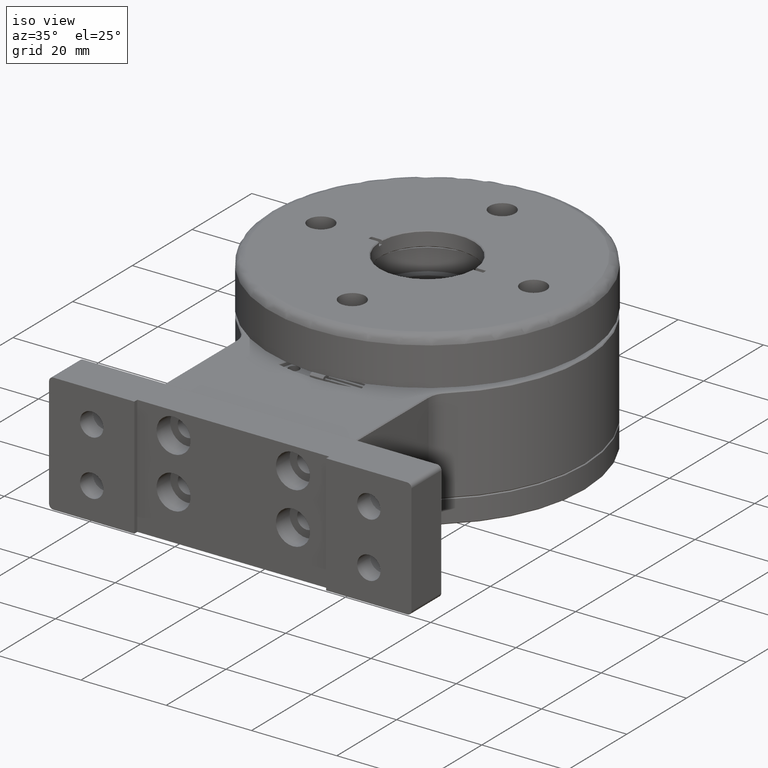
[diagram: clean part render]
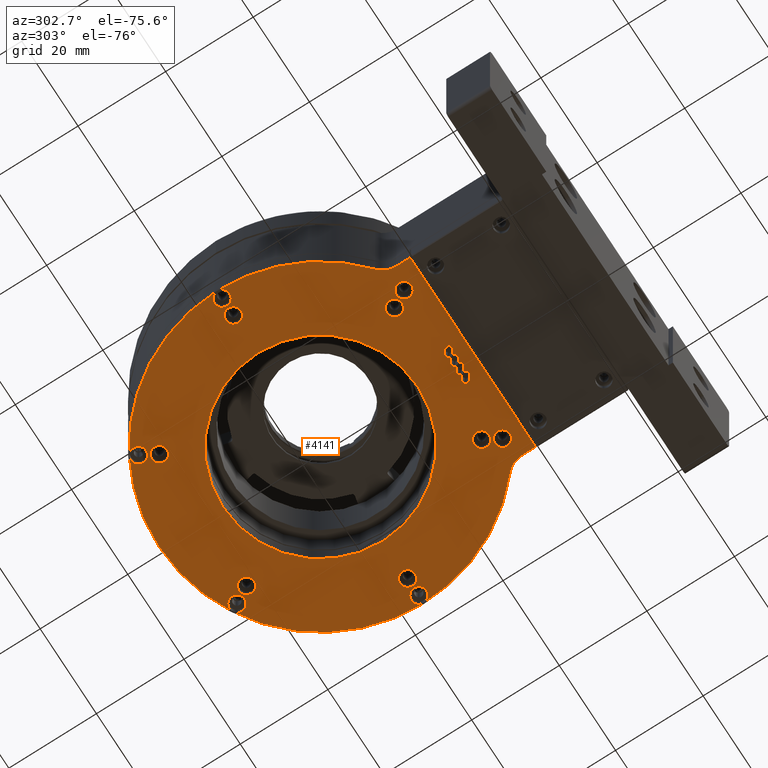
[diagram: tour spotlight — one face highlighted and labeled with its STEP entity id]
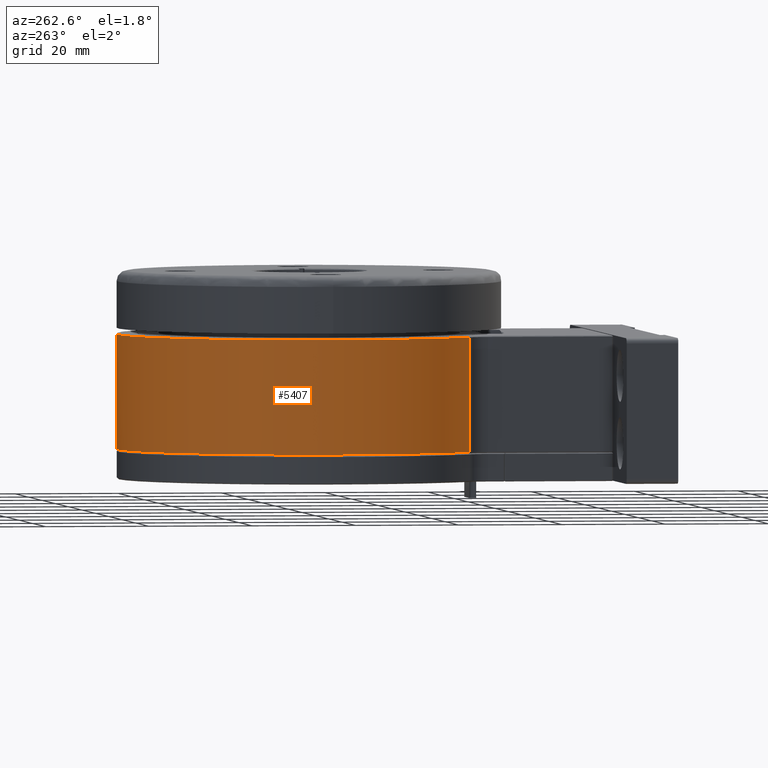
[diagram: tour spotlight — one face highlighted and labeled with its STEP entity id]
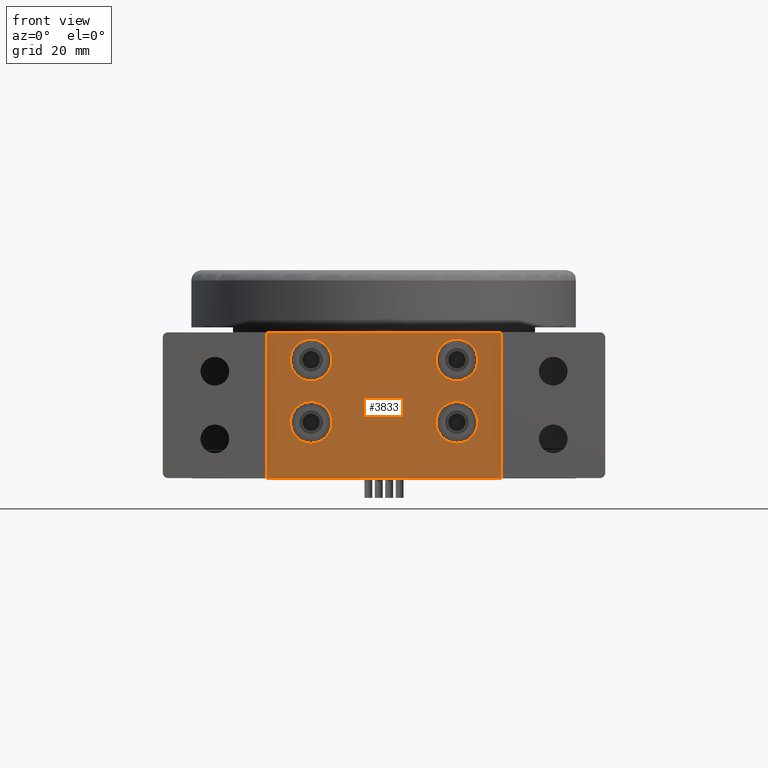
[diagram: tour spotlight — one face highlighted and labeled with its STEP entity id]
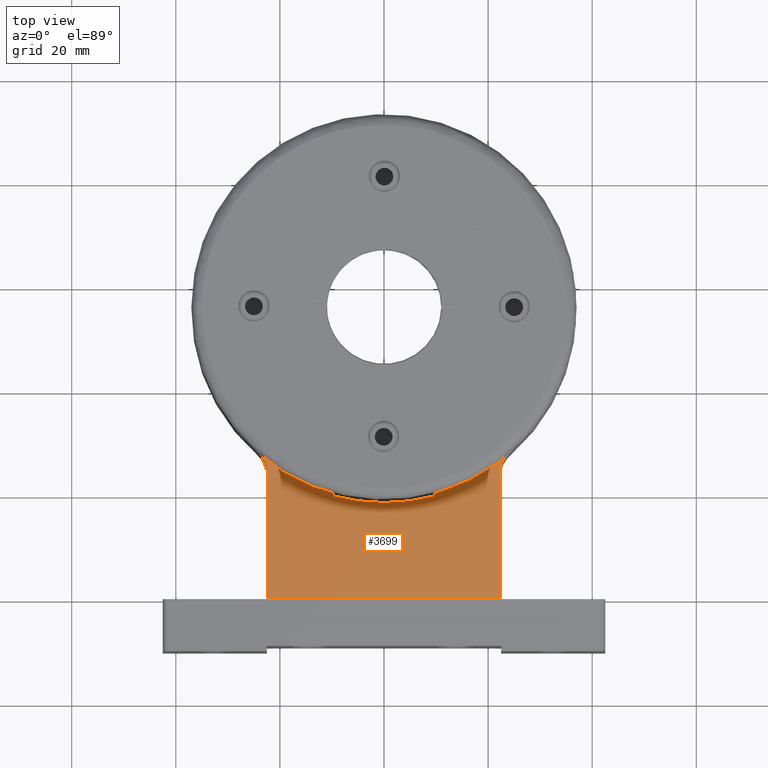
[diagram: tour spotlight — one face highlighted and labeled with its STEP entity id]
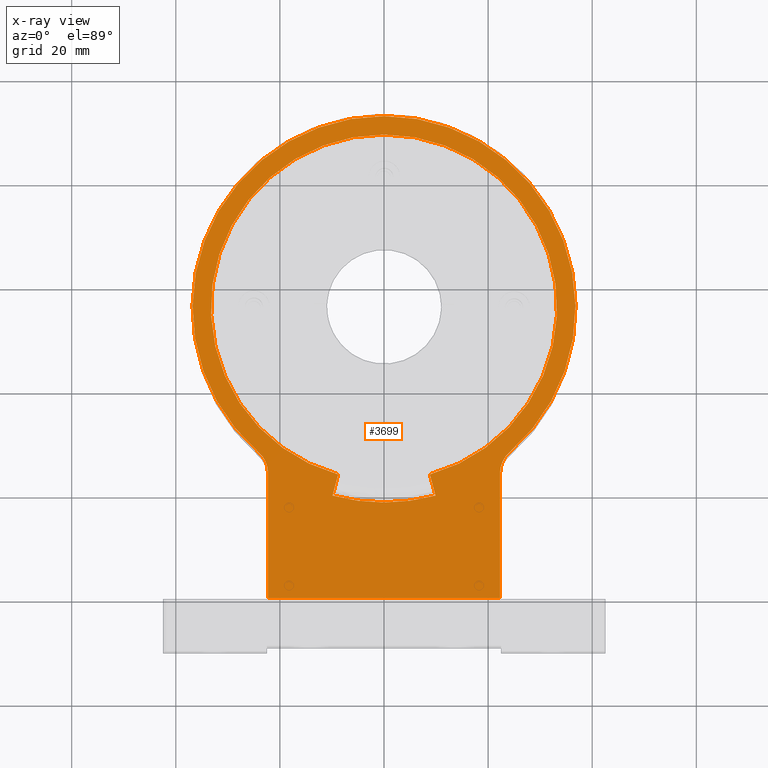
[diagram: x-ray of the same camera — body ghosted, this tour face saturated]
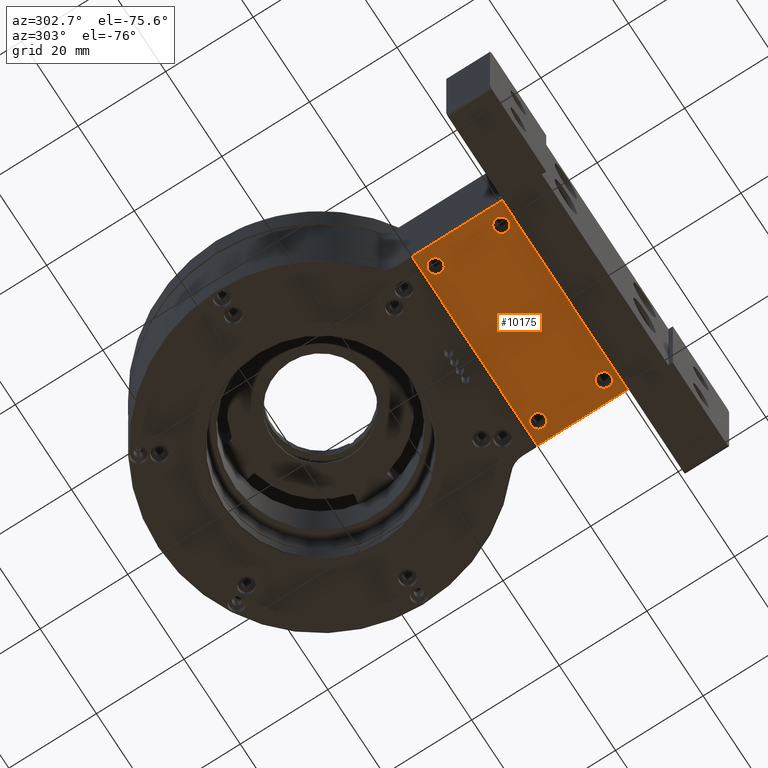
[diagram: tour spotlight — one face highlighted and labeled with its STEP entity id]
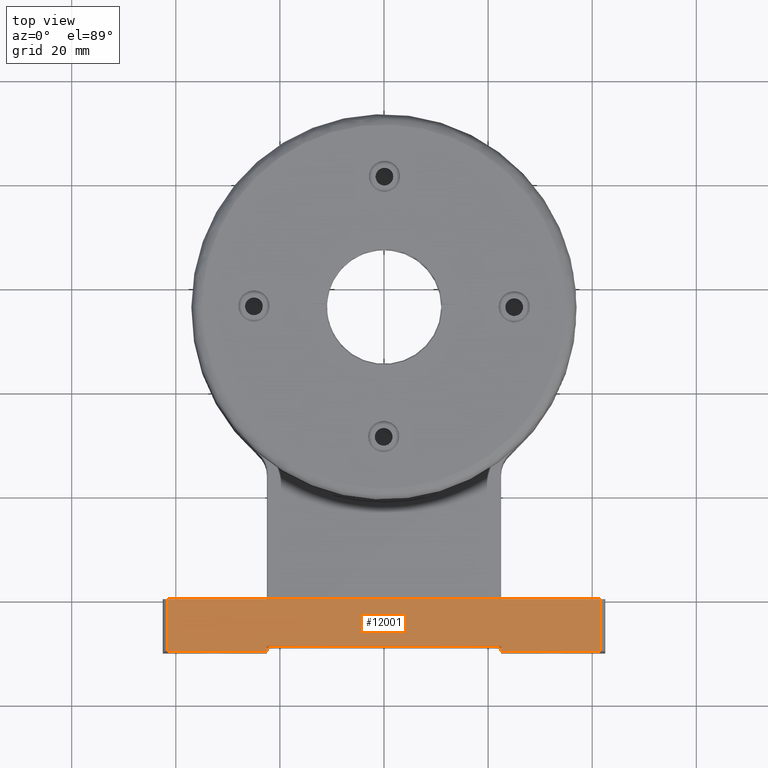
[diagram: tour spotlight — one face highlighted and labeled with its STEP entity id]
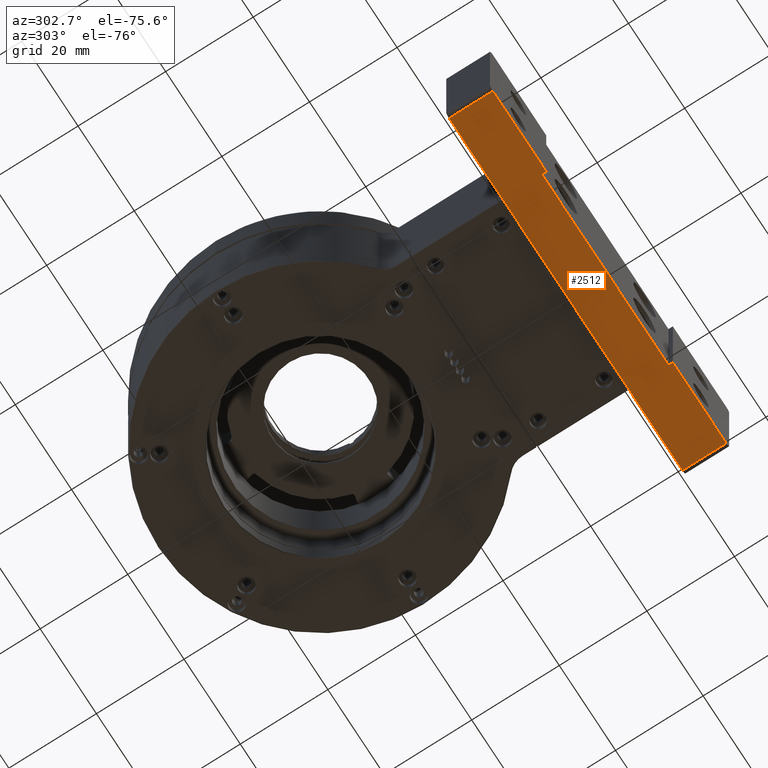
[diagram: tour spotlight — one face highlighted and labeled with its STEP entity id]
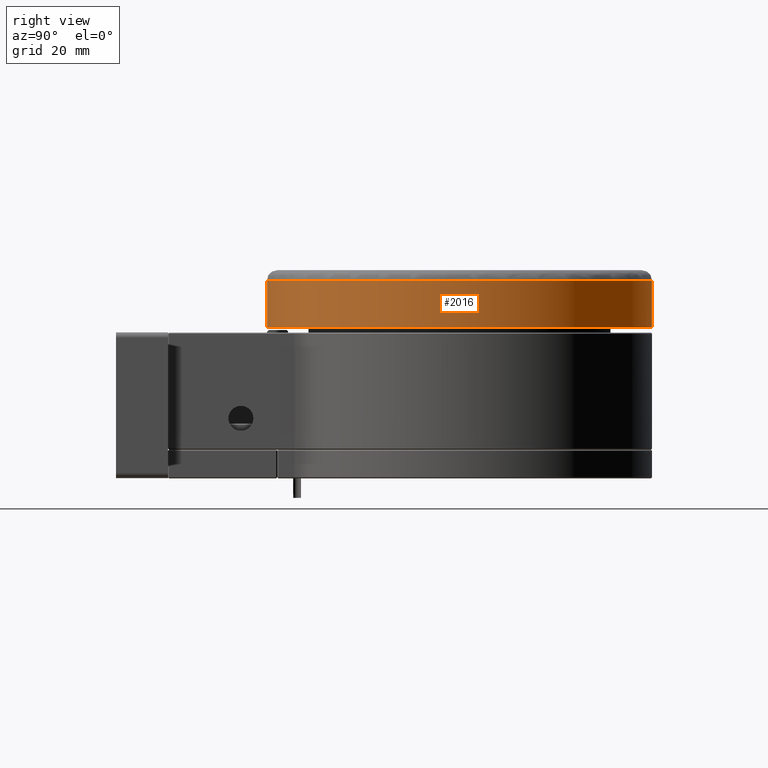
[diagram: tour spotlight — one face highlighted and labeled with its STEP entity id]
A machine part: a face-by-face anatomy tour. The part has 455 B-rep faces; the first image is the clean iso view, then the 8 largest visible faces are spotlighted one at a time (largest first), each with its STEP entity span.

Face 1 — auxiliary view, entity #4141. In plain terms, the highlighted planar face has unit normal (0, 0, 1).
Definition (entity closure, byte-faithful):
#25 = DIRECTION ( 'NONE',  ( -1.000000000000000000, 0.000000000000000000, 0.000000000000000000 ) ) ;
#184 = EDGE_LOOP ( 'NONE', ( #10470 ) ) ;
#209 = DIRECTION ( 'NONE',  ( -1.000000000000000000, 0.000000000000000000, 0.000000000000000000 ) ) ;
#252 = VERTEX_POINT ( 'NONE', #12304 ) ;
#321 = EDGE_CURVE ( 'NONE', #7332, #7332, #2275, .T. ) ;
#449 = EDGE_CURVE ( 'NONE', #3108, #3108, #5115, .T. ) ;
#612 = AXIS2_PLACEMENT_3D ( 'NONE', #11941, #2608, #6837 ) ;
#766 = CARTESIAN_POINT ( 'NONE',  ( 15.74999999999975664, 86.31088913245535821, 1.998986561675365431E-15 ) ) ;
#842 = CARTESIAN_POINT ( 'NONE',  ( 13.74999999999950084, 82.84678751731775037, 1.998986561675365431E-15 ) ) ;
#905 = CARTESIAN_POINT ( 'NONE',  ( -19.25000000000024158, 86.31088913245538663, 1.998986561675365431E-15 ) ) ;
#924 = FACE_BOUND ( 'NONE', #184, .T. ) ;
#1021 = DIRECTION ( 'NONE',  ( -1.000000000000000000, 0.000000000000000000, 0.000000000000000000 ) ) ;
#1066 = AXIS2_PLACEMENT_3D ( 'NONE', #6223, #8328, #1021 ) ;
#1118 = CARTESIAN_POINT ( 'NONE',  ( 15.49999999999987566, 29.15321248268246990, 1.998986561675365431E-15 ) ) ;
#1165 = CARTESIAN_POINT ( 'NONE',  ( 27.49999999999974420, 24.25492164130005435, 5.684368312389371072E-11 ) ) ;
#1180 = CARTESIAN_POINT ( 'NONE',  ( -17.50000000000025580, 25.68911086754464890, 1.998986561675365431E-15 ) ) ;
#1195 = CARTESIAN_POINT ( 'NONE',  ( -17.25000000000025224, 29.15321248268239884, 1.998986561675365431E-15 ) ) ;
#1432 = EDGE_LOOP ( 'NONE', ( #2360 ) ) ;
#1442 = DIRECTION ( 'NONE',  ( -1.000000000000000000, 0.000000000000000000, 0.000000000000000000 ) ) ;
#1581 = DIRECTION ( 'NONE',  ( -0.000000000000000000, -0.000000000000000000, 1.000000000000000000 ) ) ;
#1603 = EDGE_LOOP ( 'NONE', ( #12891 ) ) ;
#1642 = ORIENTED_EDGE ( 'NONE', *, *, #9757, .T. ) ;
#1703 = EDGE_LOOP ( 'NONE', ( #13375 ) ) ;
#1727 = AXIS2_PLACEMENT_3D ( 'NONE', #6327, #10472, #4136 ) ;
#1748 = VERTEX_POINT ( 'NONE', #842 ) ;
#1764 = CIRCLE ( 'NONE', #3519, 1.749999999999998002 ) ;
#1796 = EDGE_LOOP ( 'NONE', ( #9719 ) ) ;
#1849 = DIRECTION ( 'NONE',  ( -1.000000000000000000, -0.000000000000000000, -0.000000000000000000 ) ) ;
#1897 = CARTESIAN_POINT ( 'NONE',  ( -2.517985819849855539E-13, 56.00000000000000000, 1.998986561675365431E-15 ) ) ;
#1970 = DIRECTION ( 'NONE',  ( -1.000000000000000000, 0.000000000000000000, 0.000000000000000000 ) ) ;
#2010 = DIRECTION ( 'NONE',  ( 0.000000000000000000, 0.000000000000000000, 1.000000000000000000 ) ) ;
#2275 = CIRCLE ( 'NONE', #6421, 1.749999999999998002 ) ;
#2278 = AXIS2_PLACEMENT_3D ( 'NONE', #1118, #4137, #7277 ) ;
#2336 = VECTOR ( 'NONE', #1849, 1000.000000000000000 ) ;
#2360 = ORIENTED_EDGE ( 'NONE', *, *, #8017, .T. ) ;
#2368 = VERTEX_POINT ( 'NONE', #1195 ) ;
#2375 = ORIENTED_EDGE ( 'NONE', *, *, #8270, .T. ) ;
#2608 = DIRECTION ( 'NONE',  ( 0.000000000000000000, 0.000000000000000000, 1.000000000000000000 ) ) ;
#2670 = EDGE_LOOP ( 'NONE', ( #4582 ) ) ;
#2688 = EDGE_CURVE ( 'NONE', #12980, #12980, #8171, .T. ) ;
#2843 = VERTEX_POINT ( 'NONE', #12373 ) ;
#2922 = FACE_BOUND ( 'NONE', #1432, .T. ) ;
#2999 = EDGE_CURVE ( 'NONE', #3380, #3418, #9469, .T. ) ;
#3069 = FACE_OUTER_BOUND ( 'NONE', #4134, .T. ) ;
#3099 = ORIENTED_EDGE ( 'NONE', *, *, #9322, .T. ) ;
#3108 = VERTEX_POINT ( 'NONE', #11612 ) ;
#3127 = ORIENTED_EDGE ( 'NONE', *, *, #2999, .T. ) ;
#3207 = AXIS2_PLACEMENT_3D ( 'NONE', #1897, #9529, #9734 ) ;
#3224 = AXIS2_PLACEMENT_3D ( 'NONE', #1165, #10658, #4393 ) ;
#3380 = VERTEX_POINT ( 'NONE', #11651 ) ;
#3418 = VERTEX_POINT ( 'NONE', #12536 ) ;
#3519 = AXIS2_PLACEMENT_3D ( 'NONE', #5243, #9387, #25 ) ;
#3610 = DIRECTION ( 'NONE',  ( -1.000000000000000000, 0.000000000000000000, 0.000000000000000000 ) ) ;
#3624 = VECTOR ( 'NONE', #4326, 1000.000000000000000 ) ;
#3655 = CARTESIAN_POINT ( 'NONE',  ( 33.24999999999975131, 56.00000000000000000, 1.998986561675365431E-15 ) ) ;
#3796 = VERTEX_POINT ( 'NONE', #766 ) ;
#3827 = AXIS2_PLACEMENT_3D ( 'NONE', #10969, #11207, #3610 ) ;
#3947 = FACE_BOUND ( 'NONE', #1703, .T. ) ;
#3952 = DIRECTION ( 'NONE',  ( 0.000000000000000000, 0.000000000000000000, 1.000000000000000000 ) ) ;
#3986 = DIRECTION ( 'NONE',  ( -1.000000000000000000, 0.000000000000000000, 0.000000000000000000 ) ) ;
#4009 = DIRECTION ( 'NONE',  ( 0.000000000000000000, -0.000000000000000000, 1.000000000000000000 ) ) ;
#4010 = EDGE_CURVE ( 'NONE', #10312, #3418, #9490, .T. ) ;
#4017 = DIRECTION ( 'NONE',  ( -1.000000000000000000, 0.000000000000000000, 0.000000000000000000 ) ) ;
#4083 = DIRECTION ( 'NONE',  ( 1.000000000000000000, 0.000000000000000000, 0.000000000000000000 ) ) ;
#4134 = EDGE_LOOP ( 'NONE', ( #11965, #4161, #3127, #4149, #12160, #10547 ) ) ;
#4136 = DIRECTION ( 'NONE',  ( -1.000000000000000000, 0.000000000000000000, 0.000000000000000000 ) ) ;
#4137 = DIRECTION ( 'NONE',  ( 0.000000000000000000, 0.000000000000000000, 1.000000000000000000 ) ) ;
#4141 = ADVANCED_FACE ( 'NONE', ( #4980, #13281, #9192, #3947, #12327, #924, #5111, #9260, #6198, #8107, #13346, #12397, #3069, #2922 ), #7090, .F. ) ;
#4149 = ORIENTED_EDGE ( 'NONE', *, *, #4010, .F. ) ;
#4158 = CARTESIAN_POINT ( 'NONE',  ( -35.00000000000025580, 56.00000000000000000, 1.998986561675365431E-15 ) ) ;
#4161 = ORIENTED_EDGE ( 'NONE', *, *, #13493, .T. ) ;
#4193 = DIRECTION ( 'NONE',  ( 0.000000000000000000, 0.000000000000000000, 1.000000000000000000 ) ) ;
#4219 = DIRECTION ( 'NONE',  ( 0.000000000000000000, 0.000000000000000000, 1.000000000000000000 ) ) ;
#4326 = DIRECTION ( 'NONE',  ( -3.082641030591480162E-16, -1.000000000000000000, 3.082641030591598984E-16 ) ) ;
#4393 = DIRECTION ( 'NONE',  ( -1.000000000000000000, -2.001604010732036978E-15, 0.000000000000000000 ) ) ;
#4423 = VERTEX_POINT ( 'NONE', #10873 ) ;
#4461 = DIRECTION ( 'NONE',  ( 0.000000000000000000, 0.000000000000000000, 1.000000000000000000 ) ) ;
#4582 = ORIENTED_EDGE ( 'NONE', *, *, #449, .T. ) ;
#4598 = AXIS2_PLACEMENT_3D ( 'NONE', #5053, #3952, #4017 ) ;
#4618 = ORIENTED_EDGE ( 'NONE', *, *, #7564, .T. ) ;
#4646 = EDGE_CURVE ( 'NONE', #252, #4423, #9015, .T. ) ;
#4695 = CARTESIAN_POINT ( 'NONE',  ( -17.25000000000023093, 82.84678751731760826, 1.998986561675365431E-15 ) ) ;
#4956 = VERTEX_POINT ( 'NONE', #11157 ) ;
#4980 = FACE_BOUND ( 'NONE', #7799, .T. ) ;
#4992 = VERTEX_POINT ( 'NONE', #8842 ) ;
#5033 = EDGE_LOOP ( 'NONE', ( #2375 ) ) ;
#5053 = CARTESIAN_POINT ( 'NONE',  ( 17.49999999999975486, 86.31088913245535821, 1.998986561675365431E-15 ) ) ;
#5111 = FACE_BOUND ( 'NONE', #1603, .T. ) ;
#5115 = CIRCLE ( 'NONE', #5326, 1.749999999999998002 ) ;
#5210 = EDGE_CURVE ( 'NONE', #2368, #2368, #9524, .T. ) ;
#5243 = CARTESIAN_POINT ( 'NONE',  ( -17.50000000000024514, 86.31088913245538663, 1.998986561675365431E-15 ) ) ;
#5326 = AXIS2_PLACEMENT_3D ( 'NONE', #1180, #2010, #8222 ) ;
#5433 = CIRCLE ( 'NONE', #1727, 1.750000000000001554 ) ;
#5465 = AXIS2_PLACEMENT_3D ( 'NONE', #4158, #4219, #1970 ) ;
#5491 = CARTESIAN_POINT ( 'NONE',  ( 22.29999999999974136, 26.62739371455096560, 2.920558408288044200E-15 ) ) ;
#5599 = DIRECTION ( 'NONE',  ( -1.000000000000000000, 0.000000000000000000, 0.000000000000000000 ) ) ;
#5642 = AXIS2_PLACEMENT_3D ( 'NONE', #13258, #4193, #3986 ) ;
#5680 = AXIS2_PLACEMENT_3D ( 'NONE', #6586, #4461, #209 ) ;
#6039 = EDGE_LOOP ( 'NONE', ( #3099 ) ) ;
#6047 = CARTESIAN_POINT ( 'NONE',  ( -22.30000000000024940, 26.62739371455096560, -1.795721042023900088E-15 ) ) ;
#6117 = CIRCLE ( 'NONE', #5465, 1.750000000000001554 ) ;
#6121 = VERTEX_POINT ( 'NONE', #905 ) ;
#6198 = FACE_BOUND ( 'NONE', #11541, .T. ) ;
#6223 = CARTESIAN_POINT ( 'NONE',  ( 15.49999999999949907, 82.84678751731775037, 1.998986561675365431E-15 ) ) ;
#6327 = CARTESIAN_POINT ( 'NONE',  ( 30.99999999999974776, 56.00000000000022027, 1.998986561675365431E-15 ) ) ;
#6421 = AXIS2_PLACEMENT_3D ( 'NONE', #13262, #7007, #10064 ) ;
#6426 = CIRCLE ( 'NONE', #2278, 1.749999999999999778 ) ;
#6561 = EDGE_CURVE ( 'NONE', #10962, #10962, #5433, .T. ) ;
#6586 = CARTESIAN_POINT ( 'NONE',  ( -31.00000000000025224, 56.00000000000000000, 1.998986561675365431E-15 ) ) ;
#6837 = DIRECTION ( 'NONE',  ( -1.000000000000000000, 0.000000000000000000, 0.000000000000000000 ) ) ;
#6876 = EDGE_CURVE ( 'NONE', #10312, #4992, #9760, .T. ) ;
#6879 = VERTEX_POINT ( 'NONE', #4695 ) ;
#6943 = DIRECTION ( 'NONE',  ( -3.082641030591480162E-16, 1.000000000000000000, -3.082641030591598984E-16 ) ) ;
#7007 = DIRECTION ( 'NONE',  ( 0.000000000000000000, 0.000000000000000000, 1.000000000000000000 ) ) ;
#7090 = PLANE ( 'NONE',  #3207 ) ;
#7167 = CIRCLE ( 'NONE', #11305, 22.19999999999998863 ) ;
#7266 = CARTESIAN_POINT ( 'NONE',  ( 13.74999999999987566, 29.15321248268246990, 1.998986561675365431E-15 ) ) ;
#7277 = DIRECTION ( 'NONE',  ( -1.000000000000000000, 0.000000000000000000, 0.000000000000000000 ) ) ;
#7332 = VERTEX_POINT ( 'NONE', #12437 ) ;
#7564 = EDGE_CURVE ( 'NONE', #6879, #6879, #9110, .T. ) ;
#7577 = EDGE_LOOP ( 'NONE', ( #4618 ) ) ;
#7799 = EDGE_LOOP ( 'NONE', ( #1642 ) ) ;
#8017 = EDGE_CURVE ( 'NONE', #8915, #8915, #7167, .T. ) ;
#8107 = FACE_BOUND ( 'NONE', #7577, .T. ) ;
#8171 = CIRCLE ( 'NONE', #3827, 1.750000000000001554 ) ;
#8222 = DIRECTION ( 'NONE',  ( -1.000000000000000000, 0.000000000000000000, 0.000000000000000000 ) ) ;
#8270 = EDGE_CURVE ( 'NONE', #4956, #4956, #11967, .T. ) ;
#8328 = DIRECTION ( 'NONE',  ( 0.000000000000000000, 0.000000000000000000, 1.000000000000000000 ) ) ;
#8436 = ORIENTED_EDGE ( 'NONE', *, *, #2688, .T. ) ;
#8497 = EDGE_LOOP ( 'NONE', ( #8436 ) ) ;
#8509 = EDGE_CURVE ( 'NONE', #1748, #1748, #13053, .T. ) ;
#8525 = ORIENTED_EDGE ( 'NONE', *, *, #9242, .T. ) ;
#8652 = CARTESIAN_POINT ( 'NONE',  ( -2.517985819849855539E-13, 56.00000000000000000, 1.998986561675365431E-15 ) ) ;
#8842 = CARTESIAN_POINT ( 'NONE',  ( 22.29999999999296634, 24.25492164130005435, 4.263410900038527169E-11 ) ) ;
#8915 = VERTEX_POINT ( 'NONE', #13066 ) ;
#9015 = LINE ( 'NONE', #10167, #2336 ) ;
#9110 = CIRCLE ( 'NONE', #612, 1.749999999999996447 ) ;
#9192 = FACE_BOUND ( 'NONE', #2670, .T. ) ;
#9242 = EDGE_CURVE ( 'NONE', #2843, #2843, #6117, .T. ) ;
#9260 = FACE_BOUND ( 'NONE', #1796, .T. ) ;
#9322 = EDGE_CURVE ( 'NONE', #3796, #3796, #11985, .T. ) ;
#9387 = DIRECTION ( 'NONE',  ( 0.000000000000000000, 0.000000000000000000, 1.000000000000000000 ) ) ;
#9430 = VERTEX_POINT ( 'NONE', #7266 ) ;
#9469 = CIRCLE ( 'NONE', #10794, 5.200000000033917047 ) ;
#9490 = CIRCLE ( 'NONE', #11241, 36.79999999999999716 ) ;
#9524 = CIRCLE ( 'NONE', #5642, 1.749999999999999778 ) ;
#9529 = DIRECTION ( 'NONE',  ( 0.000000000000000000, 0.000000000000000000, 1.000000000000000000 ) ) ;
#9719 = ORIENTED_EDGE ( 'NONE', *, *, #6561, .T. ) ;
#9734 = DIRECTION ( 'NONE',  ( 1.000000000000000000, 0.000000000000000000, -0.000000000000000000 ) ) ;
#9757 = EDGE_CURVE ( 'NONE', #6121, #6121, #1764, .T. ) ;
#9760 = CIRCLE ( 'NONE', #3224, 5.200000000027102942 ) ;
#10064 = DIRECTION ( 'NONE',  ( -1.000000000000000000, 0.000000000000000000, 0.000000000000000000 ) ) ;
#10167 = CARTESIAN_POINT ( 'NONE',  ( -22.50000000000025224, 21.19999999999998863, 1.944776453051090209E-15 ) ) ;
#10312 = VERTEX_POINT ( 'NONE', #12271 ) ;
#10470 = ORIENTED_EDGE ( 'NONE', *, *, #5210, .T. ) ;
#10472 = DIRECTION ( 'NONE',  ( 0.000000000000000000, 0.000000000000000000, 1.000000000000000000 ) ) ;
#10547 = ORIENTED_EDGE ( 'NONE', *, *, #11301, .T. ) ;
#10658 = DIRECTION ( 'NONE',  ( -0.000000000000000000, -0.000000000000000000, 1.000000000000000000 ) ) ;
#10725 = EDGE_CURVE ( 'NONE', #9430, #9430, #6426, .T. ) ;
#10794 = AXIS2_PLACEMENT_3D ( 'NONE', #12899, #1581, #1442 ) ;
#10872 = LINE ( 'NONE', #5491, #3624 ) ;
#10873 = CARTESIAN_POINT ( 'NONE',  ( -22.30000000000024940, 21.19999999999998863, 1.034896455597591877E-15 ) ) ;
#10962 = VERTEX_POINT ( 'NONE', #12929 ) ;
#10969 = CARTESIAN_POINT ( 'NONE',  ( 34.99999999999975131, 56.00000000000000000, 1.998986561675365431E-15 ) ) ;
#11157 = CARTESIAN_POINT ( 'NONE',  ( -32.75000000000024869, 56.00000000000000000, 1.998986561675365431E-15 ) ) ;
#11207 = DIRECTION ( 'NONE',  ( 0.000000000000000000, 0.000000000000000000, 1.000000000000000000 ) ) ;
#11216 = LINE ( 'NONE', #6047, #13408 ) ;
#11241 = AXIS2_PLACEMENT_3D ( 'NONE', #12529, #4009, #4083 ) ;
#11301 = EDGE_CURVE ( 'NONE', #4992, #252, #10872, .T. ) ;
#11305 = AXIS2_PLACEMENT_3D ( 'NONE', #8652, #13016, #5599 ) ;
#11541 = EDGE_LOOP ( 'NONE', ( #13097 ) ) ;
#11612 = CARTESIAN_POINT ( 'NONE',  ( -19.25000000000025224, 25.68911086754464890, 1.998986561675365431E-15 ) ) ;
#11651 = CARTESIAN_POINT ( 'NONE',  ( -22.29999999997183124, 24.25492164130005435, -2.842109969999851564E-11 ) ) ;
#11941 = CARTESIAN_POINT ( 'NONE',  ( -15.50000000000023448, 82.84678751731760826, 1.998986561675365431E-15 ) ) ;
#11965 = ORIENTED_EDGE ( 'NONE', *, *, #4646, .T. ) ;
#11967 = CIRCLE ( 'NONE', #5680, 1.749999999999998002 ) ;
#11985 = CIRCLE ( 'NONE', #4598, 1.749999999999998002 ) ;
#12160 = ORIENTED_EDGE ( 'NONE', *, *, #6876, .T. ) ;
#12271 = CARTESIAN_POINT ( 'NONE',  ( 24.09523809524867133, 28.18526467617420295, 5.332496253904843248E-11 ) ) ;
#12304 = CARTESIAN_POINT ( 'NONE',  ( 22.29999999999974136, 21.19999999999998863, 3.250734645614841564E-15 ) ) ;
#12327 = FACE_BOUND ( 'NONE', #8497, .T. ) ;
#12373 = CARTESIAN_POINT ( 'NONE',  ( -36.75000000000025580, 56.00000000000000000, 1.998986561675365431E-15 ) ) ;
#12397 = FACE_BOUND ( 'NONE', #6039, .T. ) ;
#12437 = CARTESIAN_POINT ( 'NONE',  ( 15.74999999999974598, 25.68911086754464179, 1.998986561675365431E-15 ) ) ;
#12483 = EDGE_LOOP ( 'NONE', ( #8525 ) ) ;
#12529 = CARTESIAN_POINT ( 'NONE',  ( -2.517985819849855539E-13, 56.00000000000000000, 2.812138191039493756E-15 ) ) ;
#12536 = CARTESIAN_POINT ( 'NONE',  ( -24.09523809525907723, 28.18526467618978515, -2.490037521961855543E-11 ) ) ;
#12891 = ORIENTED_EDGE ( 'NONE', *, *, #10725, .T. ) ;
#12899 = CARTESIAN_POINT ( 'NONE',  ( -27.50000000000025580, 24.25492164130005435, -5.684141987424634221E-11 ) ) ;
#12929 = CARTESIAN_POINT ( 'NONE',  ( 29.24999999999974420, 56.00000000000022027, 1.998986561675365431E-15 ) ) ;
#12980 = VERTEX_POINT ( 'NONE', #3655 ) ;
#13016 = DIRECTION ( 'NONE',  ( -0.000000000000000000, -0.000000000000000000, 1.000000000000000000 ) ) ;
#13053 = CIRCLE ( 'NONE', #1066, 1.749999999999998002 ) ;
#13066 = CARTESIAN_POINT ( 'NONE',  ( -22.20000000000024087, 56.00000000000000000, 1.998986561675365431E-15 ) ) ;
#13097 = ORIENTED_EDGE ( 'NONE', *, *, #8509, .T. ) ;
#13258 = CARTESIAN_POINT ( 'NONE',  ( -15.50000000000025224, 29.15321248268239884, 1.998986561675365431E-15 ) ) ;
#13262 = CARTESIAN_POINT ( 'NONE',  ( 17.49999999999974420, 25.68911086754464179, 1.998986561675365431E-15 ) ) ;
#13281 = FACE_BOUND ( 'NONE', #12483, .T. ) ;
#13346 = FACE_BOUND ( 'NONE', #5033, .T. ) ;
#13375 = ORIENTED_EDGE ( 'NONE', *, *, #321, .T. ) ;
#13408 = VECTOR ( 'NONE', #6943, 1000.000000000000000 ) ;
#13493 = EDGE_CURVE ( 'NONE', #4423, #3380, #11216, .T. ) ;

Face 2 — auxiliary view, entity #5407. In plain terms, the highlighted cylindrical surface (partial cylindrical patch) has radius 37 mm, axis along (-0, -0, -1).
Definition (entity closure, byte-faithful):
#214 = CARTESIAN_POINT ( 'NONE',  ( 0.000000000000000000, 56.00000000000000000, 28.00000000000000000 ) ) ;
#326 = EDGE_CURVE ( 'NONE', #5771, #1304, #11004, .T. ) ;
#375 = AXIS2_PLACEMENT_3D ( 'NONE', #214, #4400, #7334 ) ;
#843 = CARTESIAN_POINT ( 'NONE',  ( -0.03310049062424404859, 92.99998519401758301, 27.59436290330651431 ) ) ;
#845 = CARTESIAN_POINT ( 'NONE',  ( -0.02195192297454234831, 92.99999348801399890, 23.40243918267193735 ) ) ;
#906 = CARTESIAN_POINT ( 'NONE',  ( 0.09436290330662079617, 92.99987967064865302, 27.53310049062393361 ) ) ;
#929 = CARTESIAN_POINT ( 'NONE',  ( -24.22619047618586308, 28.03409763643747254, 27.79999999997827231 ) ) ;
#1304 = VERTEX_POINT ( 'NONE', #13396 ) ;
#1690 = CARTESIAN_POINT ( 'NONE',  ( -0.09999999999999939493, 92.99986486461808965, 23.48880764369017626 ) ) ;
#1807 = CARTESIAN_POINT ( 'NONE',  ( 0.01157868110493151699, 92.99999818829920173, 23.40067259117509124 ) ) ;
#1875 = CARTESIAN_POINT ( 'NONE',  ( -0.05372936595132837834, 92.99996202078182250, 27.58507892708735909 ) ) ;
#1877 = CARTESIAN_POINT ( 'NONE',  ( -0.09806762683748274090, 92.99987022228094702, 23.47746093797518441 ) ) ;
#2076 = CARTESIAN_POINT ( 'NONE',  ( 0.07109041364062917978, 92.99993170470844461, 23.42967110772659467 ) ) ;
#2304 = AXIS2_PLACEMENT_3D ( 'NONE', #12745, #5982, #5605 ) ;
#2466 = CARTESIAN_POINT ( 'NONE',  ( 0.1000000000000002554, 92.99986486461808965, 27.50000000000000000 ) ) ;
#2845 = CARTESIAN_POINT ( 'NONE',  ( -0.01103255733935353672, 92.99999996642252142, 23.39998224268394722 ) ) ;
#3024 = DIRECTION ( 'NONE',  ( 0.000000000000000000, 0.000000000000000000, 1.000000000000000000 ) ) ;
#3035 = ORIENTED_EDGE ( 'NONE', *, *, #9980, .T. ) ;
#3046 = CARTESIAN_POINT ( 'NONE',  ( -0.09999999999999927003, 92.99986486461808965, 27.50000000000000000 ) ) ;
#3112 = CARTESIAN_POINT ( 'NONE',  ( -0.07120895648760300345, 92.99993250897803421, 27.57109538445633135 ) ) ;
#3172 = CYLINDRICAL_SURFACE ( 'NONE', #375, 37.00000000000000000 ) ;
#3175 = CARTESIAN_POINT ( 'NONE',  ( -0.01119235630991338368, 93.00000000000000000, 27.60000000000047748 ) ) ;
#3178 = CARTESIAN_POINT ( 'NONE',  ( 0.1000000000000014211, 92.99986486461808965, 23.50000000000000000 ) ) ;
#3525 = EDGE_CURVE ( 'NONE', #7262, #11154, #8181, .T. ) ;
#3560 = ORIENTED_EDGE ( 'NONE', *, *, #6997, .T. ) ;
#3646 = EDGE_CURVE ( 'NONE', #11755, #3731, #7869, .T. ) ;
#3731 = VERTEX_POINT ( 'NONE', #12575 ) ;
#3798 = CARTESIAN_POINT ( 'NONE',  ( -0.09999999999999933942, 92.99986486461808965, 23.50000000000000000 ) ) ;
#3866 = CARTESIAN_POINT ( 'NONE',  ( -0.09436290330662201742, 92.99987967064865302, 23.46689950937606994 ) ) ;
#3927 = CARTESIAN_POINT ( 'NONE',  ( -0.09072779064399003057, 92.99988923857220868, 27.54351709534174120 ) ) ;
#4195 = CARTESIAN_POINT ( 'NONE',  ( -0.07886214794611400014, 92.99991643179916423, 27.56249824660933712 ) ) ;
#4365 = DIRECTION ( 'NONE',  ( -0.000000000000000000, -0.000000000000000000, -1.000000000000000000 ) ) ;
#4400 = DIRECTION ( 'NONE',  ( -0.000000000000000000, -0.000000000000000000, -1.000000000000000000 ) ) ;
#4755 = ORIENTED_EDGE ( 'NONE', *, *, #5548, .T. ) ;
#4957 = CARTESIAN_POINT ( 'NONE',  ( -0.02253906202498078340, 92.99999464235834523, 27.59806762683746584 ) ) ;
#4959 = CARTESIAN_POINT ( 'NONE',  ( 0.03374237024946687147, 92.99998598222437352, 23.40520168355187636 ) ) ;
#5027 = CARTESIAN_POINT ( 'NONE',  ( -0.09510387121065519422, 92.99987785507281046, 27.53287131585086200 ) ) ;
#5290 = CARTESIAN_POINT ( 'NONE',  ( 0.09515626113482011927, 92.99987794937852925, 23.46728065600500557 ) ) ;
#5314 = CARTESIAN_POINT ( 'NONE',  ( 24.22619047619048871, 28.03409763638338958, 28.00000000000000000 ) ) ;
#5359 = CARTESIAN_POINT ( 'NONE',  ( 0.09944637183484136833, 92.99986635677390723, 23.48949194932985662 ) ) ;
#5407 = ADVANCED_FACE ( 'NONE', ( #5563, #9569 ), #3172, .T. ) ;
#5548 = EDGE_CURVE ( 'NONE', #11154, #9184, #7116, .T. ) ;
#5563 = FACE_OUTER_BOUND ( 'NONE', #5899, .T. ) ;
#5605 = DIRECTION ( 'NONE',  ( -1.000000000000000000, 0.000000000000000000, 0.000000000000000000 ) ) ;
#5771 = VERTEX_POINT ( 'NONE', #7525 ) ;
#5866 = CARTESIAN_POINT ( 'NONE',  ( -0.07808716379805294427, 92.99991759983865336, 23.43753084881338467 ) ) ;
#5899 = EDGE_LOOP ( 'NONE', ( #9450, #4755, #3035, #7804 ) ) ;
#5982 = DIRECTION ( 'NONE',  ( 0.000000000000000000, 0.000000000000000000, 1.000000000000000000 ) ) ;
#6054 = CARTESIAN_POINT ( 'NONE',  ( -0.09065818010349860345, 92.99988911901552058, 23.45633808171126589 ) ) ;
#6108 = ORIENTED_EDGE ( 'NONE', *, *, #9805, .T. ) ;
#6178 = CARTESIAN_POINT ( 'NONE',  ( 0.04351709534206409102, 92.99997562612382751, 27.59072779064383596 ) ) ;
#6249 = CARTESIAN_POINT ( 'NONE',  ( 0.09065818010349642464, 92.99988911901552058, 27.54366191828874122 ) ) ;
#6408 = LINE ( 'NONE', #5314, #13489 ) ;
#6454 = CARTESIAN_POINT ( 'NONE',  ( 0.06321896080869439383, 92.99994682865087725, 23.42171442278977622 ) ) ;
#6583 = LINE ( 'NONE', #8476, #6948 ) ;
#6738 = VECTOR ( 'NONE', #3024, 1000.000000000000000 ) ;
#6820 = ORIENTED_EDGE ( 'NONE', *, *, #3646, .T. ) ;
#6947 = CARTESIAN_POINT ( 'NONE',  ( -0.06249824660972471552, 92.99994843294035718, 23.42113785205417287 ) ) ;
#6948 = VECTOR ( 'NONE', #12632, 1000.000000000000000 ) ;
#6997 = EDGE_CURVE ( 'NONE', #1304, #11755, #6583, .T. ) ;
#7064 = CARTESIAN_POINT ( 'NONE',  ( 0.08507892708766290335, 92.99990284394186801, 27.55372936595082933 ) ) ;
#7116 = LINE ( 'NONE', #12354, #6738 ) ;
#7138 = CARTESIAN_POINT ( 'NONE',  ( 0.05300767806341074445, 92.99996202952195290, 27.58479496486422988 ) ) ;
#7180 = CARTESIAN_POINT ( 'NONE',  ( 24.22619047619046029, 28.03409763638337893, 5.699999999999979750 ) ) ;
#7218 = LINE ( 'NONE', #13274, #12205 ) ;
#7262 = VERTEX_POINT ( 'NONE', #7180 ) ;
#7268 = CARTESIAN_POINT ( 'NONE',  ( 0.09999999999999940881, 92.99986486461808965, 23.49649245835919231 ) ) ;
#7329 = CARTESIAN_POINT ( 'NONE',  ( 24.22619047621429900, 28.03409763640905794, 27.80000000000669402 ) ) ;
#7334 = DIRECTION ( 'NONE',  ( -1.000000000000000000, 0.000000000000000000, 0.000000000000000000 ) ) ;
#7336 = CARTESIAN_POINT ( 'NONE',  ( 0.07109538445676494289, 92.99993235576931738, 27.57120895648718317 ) ) ;
#7525 = CARTESIAN_POINT ( 'NONE',  ( -0.09999999999999933942, 92.99986486461808965, 23.50000000000000000 ) ) ;
#7690 = DIRECTION ( 'NONE',  ( -1.000000000000000000, 0.000000000000000000, 0.000000000000000000 ) ) ;
#7804 = ORIENTED_EDGE ( 'NONE', *, *, #8990, .T. ) ;
#7869 = B_SPLINE_CURVE_WITH_KNOTS ( 'NONE', 3,
 ( #11292, #11362, #12374, #906, #6249, #7064, #9307, #7336, #13460, #7138, #6178, #11495, #12303, #10464, #8220, #12503, #3175, #4957, #843, #11220, #1875, #10192, #3112, #4195, #13260, #3927, #5027, #13327, #11422, #9234, #3046 ),
 .UNSPECIFIED., .F., .F.,
 ( 4, 3, 3, 3, 3, 3, 3, 3, 3, 3, 4 ),
 ( 2.710505431213761085E-20, 3.357706892947404727E-05, 6.715413263290558185E-05, 0.0001007312747056798158, 0.0001343084701348621951, 0.0001562160014275079428, 0.0001897930705527116531, 0.0002233701344518117422, 0.0002569472767196340690, 0.0002905244723443123301, 0.0003124320037640004703 ),
 .UNSPECIFIED. ) ;
#7963 = CARTESIAN_POINT ( 'NONE',  ( -0.07109538445677075769, 92.99993235576931738, 23.42879104351282393 ) ) ;
#8028 = CARTESIAN_POINT ( 'NONE',  ( -0.08507892708766658096, 92.99990284394186801, 23.44627063404917777 ) ) ;
#8165 = VERTEX_POINT ( 'NONE', #7329 ) ;
#8181 = CIRCLE ( 'NONE', #2304, 37.00000000000000000 ) ;
#8220 = CARTESIAN_POINT ( 'NONE',  ( 0.007362340938105283762, 93.00000000000000000, 27.60000000000046683 ) ) ;
#8290 = CARTESIAN_POINT ( 'NONE',  ( 0.07896189154450497516, 92.99991658071780876, 23.43762781800683115 ) ) ;
#8417 = CARTESIAN_POINT ( 'NONE',  ( 0.09981494607303405264, 92.99986536613867827, 23.49298007209311834 ) ) ;
#8476 = CARTESIAN_POINT ( 'NONE',  ( 0.1000000000000028227, 92.99986486461808965, 28.00000000000000000 ) ) ;
#8990 = EDGE_CURVE ( 'NONE', #8165, #7262, #6408, .T. ) ;
#9109 = CARTESIAN_POINT ( 'NONE',  ( 0.04380379204045745101, 92.99997407063689536, 23.41010435047858707 ) ) ;
#9184 = VERTEX_POINT ( 'NONE', #929 ) ;
#9234 = CARTESIAN_POINT ( 'NONE',  ( -0.1000000000004637180, 92.99986486461810387, 27.50736234093801613 ) ) ;
#9236 = CARTESIAN_POINT ( 'NONE',  ( 0.09036222276636431128, 92.99988965752055492, 23.45716696722479355 ) ) ;
#9307 = CARTESIAN_POINT ( 'NONE',  ( 0.07808716379804743479, 92.99991759983865336, 27.56246915118662244 ) ) ;
#9308 = CARTESIAN_POINT ( 'NONE',  ( 0.09827026964501002493, 92.99986951784195810, 23.47836152187407066 ) ) ;
#9450 = ORIENTED_EDGE ( 'NONE', *, *, #3525, .T. ) ;
#9569 = FACE_BOUND ( 'NONE', #12249, .T. ) ;
#9805 = EDGE_CURVE ( 'NONE', #3731, #5771, #7218, .T. ) ;
#9980 = EDGE_CURVE ( 'NONE', #9184, #8165, #11343, .T. ) ;
#10123 = CARTESIAN_POINT ( 'NONE',  ( 0.02269574270479217740, 92.99999470935547663, 23.40196851656579113 ) ) ;
#10192 = CARTESIAN_POINT ( 'NONE',  ( -0.06246915118715794246, 92.99994726489687480, 27.57808716379761904 ) ) ;
#10193 = CARTESIAN_POINT ( 'NONE',  ( -0.04351709534206965602, 92.99997562612382751, 23.40927220935616759 ) ) ;
#10464 = CARTESIAN_POINT ( 'NONE',  ( 0.01476916418413979151, 92.99999774951116649, 27.59917699246916811 ) ) ;
#10903 = ORIENTED_EDGE ( 'NONE', *, *, #326, .T. ) ;
#11004 = B_SPLINE_CURVE_WITH_KNOTS ( 'NONE', 3,
 ( #3798, #1690, #1877, #3866, #6054, #8028, #5866, #7963, #6947, #12235, #10193, #12179, #845, #2845, #11159, #1807, #10123, #4959, #9109, #13395, #6454, #2076, #8290, #11620, #9236, #5290, #9308, #5359, #8417, #7268, #3178 ),
 .UNSPECIFIED., .F., .F.,
 ( 4, 3, 3, 3, 3, 3, 3, 3, 3, 3, 4 ),
 ( 0.000000000000000000, 3.357706892946447241E-05, 6.715413263288490069E-05, 0.0001007312747056556516, 0.0001343084701348332469, 0.0001678855810881723677, 0.0002014626015976633041, 0.0002350396668738394723, 0.0002686168422485105231, 0.0003021940211944454911, 0.0003125816798987094704 ),
 .UNSPECIFIED. ) ;
#11154 = VERTEX_POINT ( 'NONE', #11486 ) ;
#11159 = CARTESIAN_POINT ( 'NONE',  ( 0.0004615907242492739470, 93.00000166725192230, 23.39937666242938974 ) ) ;
#11220 = CARTESIAN_POINT ( 'NONE',  ( -0.04366191828914463280, 92.99997574567765923, 27.59065818010331839 ) ) ;
#11292 = CARTESIAN_POINT ( 'NONE',  ( 0.1000000000000002554, 92.99986486461808965, 27.50000000000000000 ) ) ;
#11343 = CIRCLE ( 'NONE', #12871, 37.00000000000000000 ) ;
#11362 = CARTESIAN_POINT ( 'NONE',  ( 0.09999999999999939493, 92.99986486461808965, 27.51119235630982374 ) ) ;
#11422 = CARTESIAN_POINT ( 'NONE',  ( -0.09917699246919296774, 92.99986711511550652, 27.51476916418390317 ) ) ;
#11486 = CARTESIAN_POINT ( 'NONE',  ( -24.22619047621429189, 28.03409763638063268, 5.699999999966703257 ) ) ;
#11495 = CARTESIAN_POINT ( 'NONE',  ( 0.03287131585120488253, 92.99998700958930442, 27.59510387121053299 ) ) ;
#11620 = CARTESIAN_POINT ( 'NONE',  ( 0.08556818459101350749, 92.99990136566211163, 23.44705327885196766 ) ) ;
#11755 = VERTEX_POINT ( 'NONE', #2466 ) ;
#11980 = DIRECTION ( 'NONE',  ( -0.000000000000000000, -0.000000000000000000, -1.000000000000000000 ) ) ;
#12179 = CARTESIAN_POINT ( 'NONE',  ( -0.03287131585121078059, 92.99998700958930442, 23.40489612878947057 ) ) ;
#12205 = VECTOR ( 'NONE', #12247, 1000.000000000000000 ) ;
#12235 = CARTESIAN_POINT ( 'NONE',  ( -0.05300767806341627475, 92.99996202952195290, 23.41520503513577367 ) ) ;
#12247 = DIRECTION ( 'NONE',  ( -0.000000000000000000, -0.000000000000000000, -1.000000000000000000 ) ) ;
#12249 = EDGE_LOOP ( 'NONE', ( #6820, #6108, #10903, #3560 ) ) ;
#12303 = CARTESIAN_POINT ( 'NONE',  ( 0.02195192297453672087, 92.99999348801399890, 27.59756081732806265 ) ) ;
#12354 = CARTESIAN_POINT ( 'NONE',  ( -24.22619047619046384, 28.03409763638337182, 28.00000000000000000 ) ) ;
#12374 = CARTESIAN_POINT ( 'NONE',  ( 0.09806762683748231069, 92.99987022228094702, 27.52253906202481915 ) ) ;
#12503 = CARTESIAN_POINT ( 'NONE',  ( 5.390382111763727574E-14, 93.00000000000000000, 27.60000000000047038 ) ) ;
#12575 = CARTESIAN_POINT ( 'NONE',  ( -0.09999999999999927003, 92.99986486461808965, 27.50000000000000000 ) ) ;
#12632 = DIRECTION ( 'NONE',  ( 0.000000000000000000, 0.000000000000000000, 1.000000000000000000 ) ) ;
#12745 = CARTESIAN_POINT ( 'NONE',  ( 0.000000000000000000, 56.00000000000000000, 5.699999999999979750 ) ) ;
#12871 = AXIS2_PLACEMENT_3D ( 'NONE', #13003, #11980, #7690 ) ;
#13003 = CARTESIAN_POINT ( 'NONE',  ( 0.000000000000000000, 56.00000000000000000, 27.80000000000002203 ) ) ;
#13260 = CARTESIAN_POINT ( 'NONE',  ( -0.08479496486440923908, 92.99990283519584011, 27.55300767806312123 ) ) ;
#13274 = CARTESIAN_POINT ( 'NONE',  ( -0.09999999999999914513, 92.99986486461808965, 28.00000000000000000 ) ) ;
#13327 = CARTESIAN_POINT ( 'NONE',  ( -0.09756081732814961271, 92.99987137662674286, 27.52195192297415716 ) ) ;
#13395 = CARTESIAN_POINT ( 'NONE',  ( 0.05386522749634226753, 92.99996215903324526, 23.41500702406384349 ) ) ;
#13396 = CARTESIAN_POINT ( 'NONE',  ( 0.1000000000000014211, 92.99986486461808965, 23.50000000000000000 ) ) ;
#13460 = CARTESIAN_POINT ( 'NONE',  ( 0.06249824660971891460, 92.99994843294035718, 27.57886214794583069 ) ) ;
#13489 = VECTOR ( 'NONE', #4365, 1000.000000000000000 ) ;

Face 3 — front view, entity #3833. In plain terms, the highlighted planar face has unit normal (0, 1, 0).
Definition (entity closure, byte-faithful):
#138 = VERTEX_POINT ( 'NONE', #6545 ) ;
#721 = CARTESIAN_POINT ( 'NONE',  ( -22.50000000000000355, -9.000000000000001776, 0.04999999999999969746 ) ) ;
#777 = EDGE_CURVE ( 'NONE', #10391, #10416, #6034, .T. ) ;
#983 = ORIENTED_EDGE ( 'NONE', *, *, #7047, .F. ) ;
#1399 = DIRECTION ( 'NONE',  ( 0.000000000000000000, 0.000000000000000000, -1.000000000000000000 ) ) ;
#1438 = LINE ( 'NONE', #10779, #4926 ) ;
#1830 = VECTOR ( 'NONE', #11146, 1000.000000000000000 ) ;
#1981 = CARTESIAN_POINT ( 'NONE',  ( 0.000000000000000000, -9.000000000000001776, 14.04999999999999893 ) ) ;
#2021 = CARTESIAN_POINT ( 'NONE',  ( -13.99999999999999822, -9.000000000000001776, 10.74999999999999645 ) ) ;
#2054 = CIRCLE ( 'NONE', #11430, 4.000000000000000000 ) ;
#2158 = VECTOR ( 'NONE', #6554, 1000.000000000000000 ) ;
#2185 = PLANE ( 'NONE',  #7990 ) ;
#2229 = EDGE_CURVE ( 'NONE', #7466, #7466, #2054, .T. ) ;
#2323 = VERTEX_POINT ( 'NONE', #721 ) ;
#2348 = VERTEX_POINT ( 'NONE', #9776 ) ;
#2380 = CARTESIAN_POINT ( 'NONE',  ( 22.49999999999999289, -9.000000000000001776, 28.04999999999999716 ) ) ;
#2494 = EDGE_CURVE ( 'NONE', #2348, #2348, #5575, .T. ) ;
#2591 = CARTESIAN_POINT ( 'NONE',  ( -42.49999999999999289, -9.000000000000001776, 28.04999999999999716 ) ) ;
#2736 = DIRECTION ( 'NONE',  ( -0.000000000000000000, -1.000000000000000000, -0.000000000000000000 ) ) ;
#2920 = DIRECTION ( 'NONE',  ( 0.000000000000000000, 0.000000000000000000, -1.000000000000000000 ) ) ;
#3238 = EDGE_LOOP ( 'NONE', ( #6057, #983, #10729, #4247 ) ) ;
#3374 = CARTESIAN_POINT ( 'NONE',  ( 14.00000000000000000, -9.000000000000001776, 18.74999999999999645 ) ) ;
#3746 = ORIENTED_EDGE ( 'NONE', *, *, #12246, .F. ) ;
#3833 = ADVANCED_FACE ( 'NONE', ( #5128, #8121, #11393, #11533, #9278 ), #2185, .F. ) ;
#3935 = ORIENTED_EDGE ( 'NONE', *, *, #2494, .F. ) ;
#4207 = VERTEX_POINT ( 'NONE', #12724 ) ;
#4247 = ORIENTED_EDGE ( 'NONE', *, *, #777, .F. ) ;
#4329 = EDGE_LOOP ( 'NONE', ( #10785 ) ) ;
#4806 = EDGE_CURVE ( 'NONE', #4207, #4207, #7792, .T. ) ;
#4926 = VECTOR ( 'NONE', #7717, 1000.000000000000000 ) ;
#5128 = FACE_OUTER_BOUND ( 'NONE', #3238, .T. ) ;
#5181 = CARTESIAN_POINT ( 'NONE',  ( 14.00000000000000178, -9.000000000000001776, 10.75000000000000178 ) ) ;
#5575 = CIRCLE ( 'NONE', #7738, 4.000000000000000000 ) ;
#5767 = DIRECTION ( 'NONE',  ( 0.000000000000000000, -0.000000000000000000, 1.000000000000000000 ) ) ;
#5890 = CARTESIAN_POINT ( 'NONE',  ( -14.00000000000000000, -9.000000000000001776, 22.74999999999999645 ) ) ;
#6034 = LINE ( 'NONE', #6992, #1830 ) ;
#6057 = ORIENTED_EDGE ( 'NONE', *, *, #7979, .T. ) ;
#6066 = VECTOR ( 'NONE', #5767, 1000.000000000000000 ) ;
#6358 = DIRECTION ( 'NONE',  ( 0.000000000000000000, 1.000000000000000000, 0.000000000000000000 ) ) ;
#6545 = CARTESIAN_POINT ( 'NONE',  ( -22.50000000000000355, -9.000000000000001776, 28.04999999999999716 ) ) ;
#6554 = DIRECTION ( 'NONE',  ( -1.000000000000000000, 0.000000000000000000, -0.000000000000000000 ) ) ;
#6587 = EDGE_LOOP ( 'NONE', ( #3746 ) ) ;
#6617 = CARTESIAN_POINT ( 'NONE',  ( 22.49999999999999289, -9.000000000000001776, 0.04999999999999969746 ) ) ;
#6620 = LINE ( 'NONE', #2591, #2158 ) ;
#6650 = LINE ( 'NONE', #12973, #6066 ) ;
#6899 = EDGE_LOOP ( 'NONE', ( #7488 ) ) ;
#6992 = CARTESIAN_POINT ( 'NONE',  ( 22.49999999999999645, -9.000000000000001776, 14.04999999999999893 ) ) ;
#7047 = EDGE_CURVE ( 'NONE', #2323, #138, #6650, .T. ) ;
#7117 = AXIS2_PLACEMENT_3D ( 'NONE', #10490, #8576, #8445 ) ;
#7466 = VERTEX_POINT ( 'NONE', #9703 ) ;
#7488 = ORIENTED_EDGE ( 'NONE', *, *, #2229, .F. ) ;
#7717 = DIRECTION ( 'NONE',  ( 1.000000000000000000, 0.000000000000000000, -0.000000000000000000 ) ) ;
#7738 = AXIS2_PLACEMENT_3D ( 'NONE', #5181, #8170, #2920 ) ;
#7792 = CIRCLE ( 'NONE', #12344, 3.999999999999999112 ) ;
#7979 = EDGE_CURVE ( 'NONE', #10391, #138, #6620, .T. ) ;
#7990 = AXIS2_PLACEMENT_3D ( 'NONE', #1981, #6358, #12269 ) ;
#8121 = FACE_BOUND ( 'NONE', #8307, .T. ) ;
#8170 = DIRECTION ( 'NONE',  ( -0.000000000000000000, -1.000000000000000000, -0.000000000000000000 ) ) ;
#8307 = EDGE_LOOP ( 'NONE', ( #3935 ) ) ;
#8445 = DIRECTION ( 'NONE',  ( 0.000000000000000000, 0.000000000000000000, -1.000000000000000000 ) ) ;
#8576 = DIRECTION ( 'NONE',  ( -0.000000000000000000, -1.000000000000000000, -0.000000000000000000 ) ) ;
#8938 = DIRECTION ( 'NONE',  ( 0.000000000000000000, 0.000000000000000000, -1.000000000000000000 ) ) ;
#9278 = FACE_BOUND ( 'NONE', #4329, .T. ) ;
#9570 = VERTEX_POINT ( 'NONE', #3374 ) ;
#9703 = CARTESIAN_POINT ( 'NONE',  ( -14.00000000000000000, -9.000000000000001776, 18.74999999999999645 ) ) ;
#9776 = CARTESIAN_POINT ( 'NONE',  ( 14.00000000000000178, -9.000000000000001776, 6.750000000000002665 ) ) ;
#10340 = DIRECTION ( 'NONE',  ( -0.000000000000000000, -1.000000000000000000, -0.000000000000000000 ) ) ;
#10391 = VERTEX_POINT ( 'NONE', #2380 ) ;
#10416 = VERTEX_POINT ( 'NONE', #6617 ) ;
#10490 = CARTESIAN_POINT ( 'NONE',  ( 14.00000000000000000, -9.000000000000001776, 22.74999999999999645 ) ) ;
#10729 = ORIENTED_EDGE ( 'NONE', *, *, #11693, .T. ) ;
#10779 = CARTESIAN_POINT ( 'NONE',  ( -42.49999999999999289, -9.000000000000001776, 0.04999999999999969746 ) ) ;
#10785 = ORIENTED_EDGE ( 'NONE', *, *, #4806, .F. ) ;
#11146 = DIRECTION ( 'NONE',  ( -0.000000000000000000, 0.000000000000000000, -1.000000000000000000 ) ) ;
#11393 = FACE_BOUND ( 'NONE', #6587, .T. ) ;
#11430 = AXIS2_PLACEMENT_3D ( 'NONE', #5890, #2736, #8938 ) ;
#11533 = FACE_BOUND ( 'NONE', #6899, .T. ) ;
#11693 = EDGE_CURVE ( 'NONE', #2323, #10416, #1438, .T. ) ;
#12246 = EDGE_CURVE ( 'NONE', #9570, #9570, #12765, .T. ) ;
#12269 = DIRECTION ( 'NONE',  ( 0.000000000000000000, -0.000000000000000000, 1.000000000000000000 ) ) ;
#12344 = AXIS2_PLACEMENT_3D ( 'NONE', #2021, #10340, #1399 ) ;
#12724 = CARTESIAN_POINT ( 'NONE',  ( -13.99999999999999822, -9.000000000000001776, 6.749999999999996447 ) ) ;
#12765 = CIRCLE ( 'NONE', #7117, 4.000000000000000000 ) ;
#12973 = CARTESIAN_POINT ( 'NONE',  ( -22.50000000000000355, -9.000000000000001776, 14.04999999999999893 ) ) ;

Face 4 — top view, entity #3699. An x-ray twin of the same camera follows (body ghosted, this face saturated) — the face is partly hidden behind the body. In plain terms, the highlighted planar face has unit normal (0, 0, 1).
Definition (entity closure, byte-faithful):
#216 = DIRECTION ( 'NONE',  ( 0.000000000000000000, 0.000000000000000000, 1.000000000000000000 ) ) ;
#275 = VERTEX_POINT ( 'NONE', #2976 ) ;
#407 = CIRCLE ( 'NONE', #1932, 37.44999999999995310 ) ;
#430 = ORIENTED_EDGE ( 'NONE', *, *, #11148, .F. ) ;
#860 = ORIENTED_EDGE ( 'NONE', *, *, #3055, .T. ) ;
#944 = EDGE_CURVE ( 'NONE', #10023, #2611, #4317, .T. ) ;
#1282 = CARTESIAN_POINT ( 'NONE',  ( 0.000000000000000000, 56.00000000000000000, 28.00000000000000355 ) ) ;
#1311 = CARTESIAN_POINT ( 'NONE',  ( -24.09523809521400750, 28.18526467621449427, 28.00000000000876099 ) ) ;
#1366 = DIRECTION ( 'NONE',  ( -0.000000000000000000, 1.000000000000000000, 0.000000000000000000 ) ) ;
#1424 = AXIS2_PLACEMENT_3D ( 'NONE', #13452, #2964, #6240 ) ;
#1431 = EDGE_CURVE ( 'NONE', #7482, #10023, #9010, .T. ) ;
#1469 = ORIENTED_EDGE ( 'NONE', *, *, #7854, .T. ) ;
#1593 = CARTESIAN_POINT ( 'NONE',  ( -22.29999999997053095, 24.25492164130006145, 28.00000000002000888 ) ) ;
#1794 = EDGE_CURVE ( 'NONE', #6926, #8453, #4012, .T. ) ;
#1810 = EDGE_LOOP ( 'NONE', ( #1469, #13411, #12053, #12338 ) ) ;
#1913 = VERTEX_POINT ( 'NONE', #10999 ) ;
#1932 = AXIS2_PLACEMENT_3D ( 'NONE', #1282, #11722, #6199 ) ;
#2484 = DIRECTION ( 'NONE',  ( 0.2588190451025210170, 0.9659258262890680902, 0.000000000000000000 ) ) ;
#2526 = VECTOR ( 'NONE', #13169, 1000.000000000000000 ) ;
#2554 = VECTOR ( 'NONE', #2484, 1000.000000000000114 ) ;
#2611 = VERTEX_POINT ( 'NONE', #12733 ) ;
#2795 = CARTESIAN_POINT ( 'NONE',  ( 27.49999999999999289, 24.25492164130006145, 28.00000000002000888 ) ) ;
#2822 = LINE ( 'NONE', #7039, #2526 ) ;
#2964 = DIRECTION ( 'NONE',  ( 0.000000000000000000, 0.000000000000000000, -1.000000000000000000 ) ) ;
#2976 = CARTESIAN_POINT ( 'NONE',  ( -22.30000000000001492, 0.1999999999999883815, 28.00000000000000000 ) ) ;
#3020 = ORIENTED_EDGE ( 'NONE', *, *, #1794, .T. ) ;
#3055 = EDGE_CURVE ( 'NONE', #3226, #1913, #7797, .T. ) ;
#3226 = VERTEX_POINT ( 'NONE', #13222 ) ;
#3453 = FACE_OUTER_BOUND ( 'NONE', #13397, .T. ) ;
#3656 = CARTESIAN_POINT ( 'NONE',  ( -9.885820182242770926, 19.87835746641138712, 28.00000000000000000 ) ) ;
#3699 = ADVANCED_FACE ( 'NONE', ( #3453, #8549 ), #9571, .T. ) ;
#3756 = DIRECTION ( 'NONE',  ( -0.000000000000000000, 0.000000000000000000, -1.000000000000000000 ) ) ;
#4012 = CIRCLE ( 'NONE', #9679, 5.200000000083939256 ) ;
#4041 = DIRECTION ( 'NONE',  ( 0.2588190451025210170, -0.9659258262890680902, 0.000000000000000000 ) ) ;
#4066 = ORIENTED_EDGE ( 'NONE', *, *, #4626, .T. ) ;
#4317 = LINE ( 'NONE', #13376, #11618 ) ;
#4626 = EDGE_CURVE ( 'NONE', #8453, #275, #5909, .T. ) ;
#4832 = CARTESIAN_POINT ( 'NONE',  ( -9.885820182242772702, 19.87835746641138712, 28.00000000000000355 ) ) ;
#4904 = DIRECTION ( 'NONE',  ( 1.000000000000000000, 0.000000000000000000, 0.000000000000000000 ) ) ;
#5007 = VERTEX_POINT ( 'NONE', #4832 ) ;
#5067 = CARTESIAN_POINT ( 'NONE',  ( -22.30000000000000782, 56.00000000000000000, 28.00000000000000000 ) ) ;
#5534 = VERTEX_POINT ( 'NONE', #11143 ) ;
#5909 = LINE ( 'NONE', #5067, #12791 ) ;
#6003 = VECTOR ( 'NONE', #1366, 1000.000000000000000 ) ;
#6181 = CARTESIAN_POINT ( 'NONE',  ( 0.000000000000000000, 56.00000000000000000, 28.00000000000000355 ) ) ;
#6199 = DIRECTION ( 'NONE',  ( 1.000000000000000000, 0.000000000000000000, 0.000000000000000000 ) ) ;
#6240 = DIRECTION ( 'NONE',  ( -1.000000000000000000, 0.000000000000000000, 0.000000000000000000 ) ) ;
#6386 = ORIENTED_EDGE ( 'NONE', *, *, #9537, .T. ) ;
#6926 = VERTEX_POINT ( 'NONE', #1311 ) ;
#7039 = CARTESIAN_POINT ( 'NONE',  ( 0.000000000000000000, 0.1999999999999918510, 28.00000000000000000 ) ) ;
#7200 = AXIS2_PLACEMENT_3D ( 'NONE', #2795, #3756, #4904 ) ;
#7482 = VERTEX_POINT ( 'NONE', #10853 ) ;
#7797 = LINE ( 'NONE', #10717, #6003 ) ;
#7854 = EDGE_CURVE ( 'NONE', #2611, #5007, #407, .T. ) ;
#8453 = VERTEX_POINT ( 'NONE', #1593 ) ;
#8549 = FACE_BOUND ( 'NONE', #1810, .T. ) ;
#8751 = CARTESIAN_POINT ( 'NONE',  ( -27.49999999999999289, 24.25492164130006145, 28.00000000002000888 ) ) ;
#9010 = CIRCLE ( 'NONE', #12937, 33.24999999999995026 ) ;
#9211 = DIRECTION ( 'NONE',  ( 0.000000000000000000, -1.000000000000000000, -0.000000000000000000 ) ) ;
#9537 = EDGE_CURVE ( 'NONE', #1913, #5534, #13072, .T. ) ;
#9571 = PLANE ( 'NONE',  #10585 ) ;
#9679 = AXIS2_PLACEMENT_3D ( 'NONE', #8751, #12903, #9835 ) ;
#9835 = DIRECTION ( 'NONE',  ( 1.000000000000000000, 4.670409358323705497E-15, 0.000000000000000000 ) ) ;
#10023 = VERTEX_POINT ( 'NONE', #10723 ) ;
#10585 = AXIS2_PLACEMENT_3D ( 'NONE', #12781, #216, #10599 ) ;
#10599 = DIRECTION ( 'NONE',  ( 1.000000000000000000, 0.000000000000000000, -0.000000000000000000 ) ) ;
#10717 = CARTESIAN_POINT ( 'NONE',  ( 22.30000000000002203, 56.00000000000000000, 28.00000000000000000 ) ) ;
#10723 = CARTESIAN_POINT ( 'NONE',  ( 8.798762732879794157, 23.93531109818025371, 28.00000000000000000 ) ) ;
#10853 = CARTESIAN_POINT ( 'NONE',  ( -8.798762732879794157, 23.93531109818025016, 28.00000000000000355 ) ) ;
#10999 = CARTESIAN_POINT ( 'NONE',  ( 22.29999999999324345, 24.25492164130006145, 28.00000000001500666 ) ) ;
#11143 = CARTESIAN_POINT ( 'NONE',  ( 24.09523809522836402, 28.18526467619795284, 28.00000000000876810 ) ) ;
#11148 = EDGE_CURVE ( 'NONE', #6926, #5534, #12969, .T. ) ;
#11364 = DIRECTION ( 'NONE',  ( -0.000000000000000000, -0.000000000000000000, -1.000000000000000000 ) ) ;
#11386 = EDGE_CURVE ( 'NONE', #275, #3226, #2822, .T. ) ;
#11618 = VECTOR ( 'NONE', #4041, 1000.000000000000114 ) ;
#11722 = DIRECTION ( 'NONE',  ( -0.000000000000000000, 0.000000000000000000, -1.000000000000000000 ) ) ;
#12053 = ORIENTED_EDGE ( 'NONE', *, *, #1431, .T. ) ;
#12338 = ORIENTED_EDGE ( 'NONE', *, *, #944, .T. ) ;
#12506 = DIRECTION ( 'NONE',  ( 1.000000000000000000, 0.000000000000000000, 0.000000000000000000 ) ) ;
#12677 = EDGE_CURVE ( 'NONE', #5007, #7482, #12851, .T. ) ;
#12733 = CARTESIAN_POINT ( 'NONE',  ( 9.885820182242772702, 19.87835746641138712, 28.00000000000000355 ) ) ;
#12781 = CARTESIAN_POINT ( 'NONE',  ( 0.000000000000000000, 56.00000000000000000, 28.00000000000000000 ) ) ;
#12791 = VECTOR ( 'NONE', #9211, 1000.000000000000000 ) ;
#12851 = LINE ( 'NONE', #3656, #2554 ) ;
#12903 = DIRECTION ( 'NONE',  ( -0.000000000000000000, 0.000000000000000000, -1.000000000000000000 ) ) ;
#12937 = AXIS2_PLACEMENT_3D ( 'NONE', #6181, #11364, #12506 ) ;
#12969 = CIRCLE ( 'NONE', #1424, 36.80000000000000426 ) ;
#13072 = CIRCLE ( 'NONE', #7200, 5.200000000033931258 ) ;
#13169 = DIRECTION ( 'NONE',  ( 1.000000000000000000, 0.000000000000000000, -0.000000000000000000 ) ) ;
#13222 = CARTESIAN_POINT ( 'NONE',  ( 22.30000000000002203, 0.1999999999999918510, 28.00000000000000000 ) ) ;
#13368 = ORIENTED_EDGE ( 'NONE', *, *, #11386, .T. ) ;
#13376 = CARTESIAN_POINT ( 'NONE',  ( 8.798762732879792381, 23.93531109818025016, 28.00000000000000000 ) ) ;
#13397 = EDGE_LOOP ( 'NONE', ( #3020, #4066, #13368, #860, #6386, #430 ) ) ;
#13411 = ORIENTED_EDGE ( 'NONE', *, *, #12677, .T. ) ;
#13452 = CARTESIAN_POINT ( 'NONE',  ( 0.000000000000000000, 56.00000000000000000, 28.00000000000000000 ) ) ;

Face 5 — auxiliary view, entity #10175. In plain terms, the highlighted planar face has unit normal (0, 0, -1).
Definition (entity closure, byte-faithful):
#97 = AXIS2_PLACEMENT_3D ( 'NONE', #12175, #7706, #8579 ) ;
#170 = ORIENTED_EDGE ( 'NONE', *, *, #9309, .T. ) ;
#181 = DIRECTION ( 'NONE',  ( -1.000000000000000000, 0.000000000000000000, -0.000000000000000000 ) ) ;
#312 = CARTESIAN_POINT ( 'NONE',  ( 22.30000000000001137, 0.1999999999999970690, 2.185345003916094875E-15 ) ) ;
#434 = EDGE_LOOP ( 'NONE', ( #3315 ) ) ;
#481 = PLANE ( 'NONE',  #12425 ) ;
#679 = FACE_BOUND ( 'NONE', #8764, .T. ) ;
#756 = VECTOR ( 'NONE', #181, 1000.000000000000000 ) ;
#849 = VECTOR ( 'NONE', #10386, 1000.000000000000000 ) ;
#1006 = VECTOR ( 'NONE', #3719, 1000.000000000000000 ) ;
#1075 = LINE ( 'NONE', #2176, #2183 ) ;
#1376 = LINE ( 'NONE', #13046, #1006 ) ;
#1783 = FACE_OUTER_BOUND ( 'NONE', #1922, .T. ) ;
#1801 = ORIENTED_EDGE ( 'NONE', *, *, #3138, .T. ) ;
#1922 = EDGE_LOOP ( 'NONE', ( #4498, #170, #7864, #4673 ) ) ;
#2143 = CARTESIAN_POINT ( 'NONE',  ( 16.60000000000000142, 2.999999999999995559, 2.168404344971008868E-15 ) ) ;
#2176 = CARTESIAN_POINT ( 'NONE',  ( 22.30000000000000782, 10.49999999999999822, 2.168404344971008868E-15 ) ) ;
#2183 = VECTOR ( 'NONE', #5255, 1000.000000000000000 ) ;
#2203 = AXIS2_PLACEMENT_3D ( 'NONE', #13503, #10299, #3962 ) ;
#2861 = ORIENTED_EDGE ( 'NONE', *, *, #5571, .T. ) ;
#3138 = EDGE_CURVE ( 'NONE', #8232, #8232, #6892, .T. ) ;
#3315 = ORIENTED_EDGE ( 'NONE', *, *, #10265, .T. ) ;
#3405 = EDGE_CURVE ( 'NONE', #7925, #10662, #8376, .T. ) ;
#3495 = EDGE_CURVE ( 'NONE', #6065, #6065, #8846, .T. ) ;
#3719 = DIRECTION ( 'NONE',  ( 0.000000000000000000, 1.000000000000000000, 0.000000000000000000 ) ) ;
#3768 = CARTESIAN_POINT ( 'NONE',  ( -19.89999999999999503, 18.00000000000000000, 2.168404344971008868E-15 ) ) ;
#3835 = DIRECTION ( 'NONE',  ( -1.000000000000000000, 0.000000000000000000, -0.000000000000000000 ) ) ;
#3884 = AXIS2_PLACEMENT_3D ( 'NONE', #6030, #7186, #7248 ) ;
#3962 = DIRECTION ( 'NONE',  ( -1.000000000000000000, 0.000000000000000000, 0.000000000000000000 ) ) ;
#4127 = VERTEX_POINT ( 'NONE', #2143 ) ;
#4275 = CARTESIAN_POINT ( 'NONE',  ( -22.29999999999999361, 0.1999999999999970690, 2.148075554236905660E-15 ) ) ;
#4322 = CARTESIAN_POINT ( 'NONE',  ( 22.30000000000001137, 20.80000000000000426, 2.151463686025922861E-15 ) ) ;
#4468 = EDGE_CURVE ( 'NONE', #10662, #10076, #1376, .T. ) ;
#4498 = ORIENTED_EDGE ( 'NONE', *, *, #9158, .T. ) ;
#4673 = ORIENTED_EDGE ( 'NONE', *, *, #4468, .T. ) ;
#4919 = DIRECTION ( 'NONE',  ( 0.000000000000000000, 0.000000000000000000, 1.000000000000000000 ) ) ;
#4985 = DIRECTION ( 'NONE',  ( -1.000000000000000000, 0.000000000000000000, 0.000000000000000000 ) ) ;
#5255 = DIRECTION ( 'NONE',  ( -0.000000000000000000, -1.000000000000000000, -0.000000000000000000 ) ) ;
#5374 = VERTEX_POINT ( 'NONE', #9521 ) ;
#5571 = EDGE_CURVE ( 'NONE', #5374, #5374, #12157, .T. ) ;
#5956 = EDGE_LOOP ( 'NONE', ( #2861 ) ) ;
#5958 = FACE_BOUND ( 'NONE', #5956, .T. ) ;
#6030 = CARTESIAN_POINT ( 'NONE',  ( -18.25000000000000000, 2.999999999999995559, 2.168404344971008868E-15 ) ) ;
#6065 = VERTEX_POINT ( 'NONE', #13098 ) ;
#6892 = CIRCLE ( 'NONE', #7748, 1.649999999999998579 ) ;
#7186 = DIRECTION ( 'NONE',  ( 0.000000000000000000, 0.000000000000000000, 1.000000000000000000 ) ) ;
#7248 = DIRECTION ( 'NONE',  ( -1.000000000000000000, 0.000000000000000000, 0.000000000000000000 ) ) ;
#7526 = CARTESIAN_POINT ( 'NONE',  ( -22.29999999999999361, 20.80000000000000426, 2.134523027080836854E-15 ) ) ;
#7706 = DIRECTION ( 'NONE',  ( 0.000000000000000000, 0.000000000000000000, 1.000000000000000000 ) ) ;
#7748 = AXIS2_PLACEMENT_3D ( 'NONE', #13422, #4919, #4985 ) ;
#7864 = ORIENTED_EDGE ( 'NONE', *, *, #3405, .T. ) ;
#7925 = VERTEX_POINT ( 'NONE', #312 ) ;
#8208 = CARTESIAN_POINT ( 'NONE',  ( 3.469446951953614189E-15, 20.80000000000000071, 2.168404344971008868E-15 ) ) ;
#8232 = VERTEX_POINT ( 'NONE', #3768 ) ;
#8376 = LINE ( 'NONE', #13492, #756 ) ;
#8579 = DIRECTION ( 'NONE',  ( -1.000000000000000000, 0.000000000000000000, 0.000000000000000000 ) ) ;
#8760 = ORIENTED_EDGE ( 'NONE', *, *, #3495, .T. ) ;
#8764 = EDGE_LOOP ( 'NONE', ( #1801 ) ) ;
#8846 = CIRCLE ( 'NONE', #97, 1.649999999999998579 ) ;
#9012 = FACE_BOUND ( 'NONE', #10177, .T. ) ;
#9158 = EDGE_CURVE ( 'NONE', #10076, #10046, #11279, .T. ) ;
#9309 = EDGE_CURVE ( 'NONE', #10046, #7925, #1075, .T. ) ;
#9521 = CARTESIAN_POINT ( 'NONE',  ( -19.89999999999999858, 2.999999999999995559, 2.168404344971008868E-15 ) ) ;
#10046 = VERTEX_POINT ( 'NONE', #4322 ) ;
#10076 = VERTEX_POINT ( 'NONE', #7526 ) ;
#10096 = FACE_BOUND ( 'NONE', #434, .T. ) ;
#10175 = ADVANCED_FACE ( 'NONE', ( #679, #5958, #10096, #9012, #1783 ), #481, .T. ) ;
#10177 = EDGE_LOOP ( 'NONE', ( #8760 ) ) ;
#10265 = EDGE_CURVE ( 'NONE', #4127, #4127, #11351, .T. ) ;
#10299 = DIRECTION ( 'NONE',  ( 0.000000000000000000, 0.000000000000000000, 1.000000000000000000 ) ) ;
#10386 = DIRECTION ( 'NONE',  ( 1.000000000000000000, -0.000000000000000000, 0.000000000000000000 ) ) ;
#10662 = VERTEX_POINT ( 'NONE', #4275 ) ;
#11279 = LINE ( 'NONE', #8208, #849 ) ;
#11351 = CIRCLE ( 'NONE', #2203, 1.649999999999998579 ) ;
#12157 = CIRCLE ( 'NONE', #3884, 1.649999999999998579 ) ;
#12175 = CARTESIAN_POINT ( 'NONE',  ( 18.25000000000000355, 17.99999999999999645, 2.168404344971008868E-15 ) ) ;
#12425 = AXIS2_PLACEMENT_3D ( 'NONE', #12972, #13165, #3835 ) ;
#12972 = CARTESIAN_POINT ( 'NONE',  ( 3.469446951953614189E-15, 10.49999999999999822, 2.168404344971008868E-15 ) ) ;
#13046 = CARTESIAN_POINT ( 'NONE',  ( -22.29999999999999361, 10.49999999999999822, 2.168404344971008868E-15 ) ) ;
#13098 = CARTESIAN_POINT ( 'NONE',  ( 16.60000000000000497, 17.99999999999999645, 2.168404344971008868E-15 ) ) ;
#13165 = DIRECTION ( 'NONE',  ( 0.000000000000000000, 0.000000000000000000, -1.000000000000000000 ) ) ;
#13422 = CARTESIAN_POINT ( 'NONE',  ( -18.24999999999999645, 18.00000000000000000, 2.168404344971008868E-15 ) ) ;
#13492 = CARTESIAN_POINT ( 'NONE',  ( 3.469446951953614189E-15, 0.1999999999999970690, 2.168404344971008868E-15 ) ) ;
#13503 = CARTESIAN_POINT ( 'NONE',  ( 18.25000000000000000, 2.999999999999995559, 2.168404344971008868E-15 ) ) ;

Face 6 — top view, entity #12001. In plain terms, the highlighted planar face has unit normal (0, 0, -1).
Definition (entity closure, byte-faithful):
#138 = VERTEX_POINT ( 'NONE', #6545 ) ;
#637 = VERTEX_POINT ( 'NONE', #3378 ) ;
#919 = CARTESIAN_POINT ( 'NONE',  ( -42.49999999999999289, -10.00000000000000000, 28.04999999999999716 ) ) ;
#1373 = DIRECTION ( 'NONE',  ( 0.000000000000000000, 1.000000000000000000, 0.000000000000000000 ) ) ;
#1634 = LINE ( 'NONE', #9956, #5698 ) ;
#1781 = ORIENTED_EDGE ( 'NONE', *, *, #10225, .T. ) ;
#1900 = DIRECTION ( 'NONE',  ( -1.000000000000000000, 0.000000000000000000, -0.000000000000000000 ) ) ;
#1905 = ORIENTED_EDGE ( 'NONE', *, *, #9639, .T. ) ;
#2029 = PLANE ( 'NONE',  #4272 ) ;
#2109 = ORIENTED_EDGE ( 'NONE', *, *, #10635, .F. ) ;
#2158 = VECTOR ( 'NONE', #6554, 1000.000000000000000 ) ;
#2380 = CARTESIAN_POINT ( 'NONE',  ( 22.49999999999999289, -9.000000000000001776, 28.04999999999999716 ) ) ;
#2550 = CARTESIAN_POINT ( 'NONE',  ( -42.49999999999999289, -10.00000000000000000, 28.04999999999999716 ) ) ;
#2591 = CARTESIAN_POINT ( 'NONE',  ( -42.49999999999999289, -9.000000000000001776, 28.04999999999999716 ) ) ;
#2865 = VECTOR ( 'NONE', #5765, 1000.000000000000000 ) ;
#2987 = LINE ( 'NONE', #919, #11777 ) ;
#3070 = VECTOR ( 'NONE', #1373, 1000.000000000000000 ) ;
#3378 = CARTESIAN_POINT ( 'NONE',  ( -41.49999999999999289, 0.000000000000000000, 28.04999999999999716 ) ) ;
#3721 = ORIENTED_EDGE ( 'NONE', *, *, #8768, .T. ) ;
#4086 = DIRECTION ( 'NONE',  ( 0.000000000000000000, 0.000000000000000000, -1.000000000000000000 ) ) ;
#4272 = AXIS2_PLACEMENT_3D ( 'NONE', #10353, #4086, #1900 ) ;
#4604 = LINE ( 'NONE', #9492, #3070 ) ;
#4657 = DIRECTION ( 'NONE',  ( 0.000000000000000000, 1.000000000000000000, -0.000000000000000000 ) ) ;
#4859 = CARTESIAN_POINT ( 'NONE',  ( -22.50000000000000355, -9.000000000000001776, 28.04999999999999716 ) ) ;
#5050 = FACE_OUTER_BOUND ( 'NONE', #11886, .T. ) ;
#5698 = VECTOR ( 'NONE', #5812, 1000.000000000000000 ) ;
#5765 = DIRECTION ( 'NONE',  ( -1.000000000000000000, -0.000000000000000000, -0.000000000000000000 ) ) ;
#5812 = DIRECTION ( 'NONE',  ( 0.000000000000000000, -1.000000000000000000, -0.000000000000000000 ) ) ;
#5850 = VERTEX_POINT ( 'NONE', #12562 ) ;
#5906 = CARTESIAN_POINT ( 'NONE',  ( 0.000000000000000000, 0.000000000000000000, 28.04999999999999716 ) ) ;
#6013 = ORIENTED_EDGE ( 'NONE', *, *, #7979, .F. ) ;
#6187 = LINE ( 'NONE', #10535, #11141 ) ;
#6407 = CARTESIAN_POINT ( 'NONE',  ( 22.49999999999999289, -10.00000000000000000, 28.04999999999999716 ) ) ;
#6545 = CARTESIAN_POINT ( 'NONE',  ( -22.50000000000000355, -9.000000000000001776, 28.04999999999999716 ) ) ;
#6554 = DIRECTION ( 'NONE',  ( -1.000000000000000000, 0.000000000000000000, -0.000000000000000000 ) ) ;
#6620 = LINE ( 'NONE', #2591, #2158 ) ;
#7038 = CARTESIAN_POINT ( 'NONE',  ( -22.50000000000000355, -10.00000000000000000, 28.05000000000000071 ) ) ;
#7211 = VERTEX_POINT ( 'NONE', #7038 ) ;
#7729 = LINE ( 'NONE', #5906, #2865 ) ;
#7979 = EDGE_CURVE ( 'NONE', #10391, #138, #6620, .T. ) ;
#7987 = CARTESIAN_POINT ( 'NONE',  ( -41.49999999999999289, -10.00000000000000000, 28.04999999999999716 ) ) ;
#8704 = VERTEX_POINT ( 'NONE', #7987 ) ;
#8747 = VECTOR ( 'NONE', #13042, 1000.000000000000000 ) ;
#8768 = EDGE_CURVE ( 'NONE', #7211, #138, #8946, .T. ) ;
#8946 = LINE ( 'NONE', #4859, #9141 ) ;
#9022 = ORIENTED_EDGE ( 'NONE', *, *, #10080, .F. ) ;
#9141 = VECTOR ( 'NONE', #4657, 1000.000000000000000 ) ;
#9492 = CARTESIAN_POINT ( 'NONE',  ( -41.49999999999999289, 0.000000000000000000, 28.04999999999999716 ) ) ;
#9639 = EDGE_CURVE ( 'NONE', #10391, #12117, #1634, .T. ) ;
#9674 = EDGE_CURVE ( 'NONE', #11253, #12117, #2987, .T. ) ;
#9956 = CARTESIAN_POINT ( 'NONE',  ( 22.49999999999999645, -9.000000000000001776, 28.04999999999999716 ) ) ;
#10080 = EDGE_CURVE ( 'NONE', #8704, #637, #4604, .T. ) ;
#10225 = EDGE_CURVE ( 'NONE', #5850, #637, #7729, .T. ) ;
#10246 = EDGE_CURVE ( 'NONE', #7211, #8704, #12148, .T. ) ;
#10353 = CARTESIAN_POINT ( 'NONE',  ( -42.49999999999999289, 0.000000000000000000, 28.04999999999999716 ) ) ;
#10391 = VERTEX_POINT ( 'NONE', #2380 ) ;
#10535 = CARTESIAN_POINT ( 'NONE',  ( 41.50000000000000711, 0.000000000000000000, 28.04999999999999716 ) ) ;
#10635 = EDGE_CURVE ( 'NONE', #5850, #11253, #6187, .T. ) ;
#10659 = CARTESIAN_POINT ( 'NONE',  ( 41.50000000000000711, -10.00000000000000000, 28.04999999999999716 ) ) ;
#11141 = VECTOR ( 'NONE', #11368, 1000.000000000000000 ) ;
#11253 = VERTEX_POINT ( 'NONE', #10659 ) ;
#11368 = DIRECTION ( 'NONE',  ( -0.000000000000000000, -1.000000000000000000, -0.000000000000000000 ) ) ;
#11630 = ORIENTED_EDGE ( 'NONE', *, *, #10246, .F. ) ;
#11777 = VECTOR ( 'NONE', #13340, 1000.000000000000000 ) ;
#11886 = EDGE_LOOP ( 'NONE', ( #9022, #11630, #3721, #6013, #1905, #12394, #2109, #1781 ) ) ;
#12001 = ADVANCED_FACE ( 'NONE', ( #5050 ), #2029, .F. ) ;
#12117 = VERTEX_POINT ( 'NONE', #6407 ) ;
#12148 = LINE ( 'NONE', #2550, #8747 ) ;
#12394 = ORIENTED_EDGE ( 'NONE', *, *, #9674, .F. ) ;
#12562 = CARTESIAN_POINT ( 'NONE',  ( 41.50000000000000711, 0.000000000000000000, 28.04999999999999716 ) ) ;
#13042 = DIRECTION ( 'NONE',  ( -1.000000000000000000, 0.000000000000000000, -0.000000000000000000 ) ) ;
#13340 = DIRECTION ( 'NONE',  ( -1.000000000000000000, 0.000000000000000000, -0.000000000000000000 ) ) ;

Face 7 — auxiliary view, entity #2512. In plain terms, the highlighted planar face has unit normal (0, 0, 1).
Definition (entity closure, byte-faithful):
#480 = CARTESIAN_POINT ( 'NONE',  ( -41.49999999999999289, -10.00000000000000000, 0.04999999999999969746 ) ) ;
#721 = CARTESIAN_POINT ( 'NONE',  ( -22.50000000000000355, -9.000000000000001776, 0.04999999999999969746 ) ) ;
#779 = LINE ( 'NONE', #4966, #2428 ) ;
#936 = DIRECTION ( 'NONE',  ( -0.000000000000000000, -1.000000000000000000, 0.000000000000000000 ) ) ;
#1241 = EDGE_CURVE ( 'NONE', #8114, #3816, #6124, .T. ) ;
#1438 = LINE ( 'NONE', #10779, #4926 ) ;
#1520 = CARTESIAN_POINT ( 'NONE',  ( -42.49999999999999289, -10.00000000000000000, 0.04999999999999969746 ) ) ;
#1691 = DIRECTION ( 'NONE',  ( 1.000000000000000000, 0.000000000000000000, 0.000000000000000000 ) ) ;
#1756 = EDGE_CURVE ( 'NONE', #5885, #2149, #7596, .T. ) ;
#1819 = ORIENTED_EDGE ( 'NONE', *, *, #11693, .F. ) ;
#2087 = EDGE_CURVE ( 'NONE', #2323, #2149, #8319, .T. ) ;
#2149 = VERTEX_POINT ( 'NONE', #8799 ) ;
#2323 = VERTEX_POINT ( 'NONE', #721 ) ;
#2428 = VECTOR ( 'NONE', #13270, 1000.000000000000000 ) ;
#2512 = ADVANCED_FACE ( 'NONE', ( #5308 ), #12395, .F. ) ;
#2556 = ORIENTED_EDGE ( 'NONE', *, *, #5428, .F. ) ;
#2761 = DIRECTION ( 'NONE',  ( 1.000000000000000000, 0.000000000000000000, -0.000000000000000000 ) ) ;
#3115 = ORIENTED_EDGE ( 'NONE', *, *, #1756, .F. ) ;
#3644 = EDGE_CURVE ( 'NONE', #7310, #3816, #12233, .T. ) ;
#3765 = CARTESIAN_POINT ( 'NONE',  ( 22.49999999999999645, -9.000000000000001776, 0.04999999999999969746 ) ) ;
#3816 = VERTEX_POINT ( 'NONE', #3961 ) ;
#3961 = CARTESIAN_POINT ( 'NONE',  ( 41.50000000000000711, 0.000000000000000000, 0.04999999999999969746 ) ) ;
#3988 = CARTESIAN_POINT ( 'NONE',  ( 41.50000000000000711, 0.000000000000000000, 0.04999999999999969746 ) ) ;
#4529 = DIRECTION ( 'NONE',  ( 1.000000000000000000, 0.000000000000000000, -0.000000000000000000 ) ) ;
#4790 = EDGE_LOOP ( 'NONE', ( #5746, #8698, #10281, #2556, #11337, #1819, #8354, #3115 ) ) ;
#4926 = VECTOR ( 'NONE', #7717, 1000.000000000000000 ) ;
#4966 = CARTESIAN_POINT ( 'NONE',  ( -41.49999999999999289, 0.000000000000000000, 0.04999999999999969746 ) ) ;
#5060 = CARTESIAN_POINT ( 'NONE',  ( -22.50000000000000355, -9.000000000000001776, 0.04999999999999969746 ) ) ;
#5308 = FACE_OUTER_BOUND ( 'NONE', #4790, .T. ) ;
#5428 = EDGE_CURVE ( 'NONE', #7875, #7310, #5497, .T. ) ;
#5497 = LINE ( 'NONE', #11492, #6496 ) ;
#5691 = DIRECTION ( 'NONE',  ( -0.000000000000000000, 1.000000000000000000, 0.000000000000000000 ) ) ;
#5746 = ORIENTED_EDGE ( 'NONE', *, *, #10583, .F. ) ;
#5787 = VECTOR ( 'NONE', #936, 1000.000000000000000 ) ;
#5885 = VERTEX_POINT ( 'NONE', #480 ) ;
#6052 = DIRECTION ( 'NONE',  ( -0.000000000000000000, 1.000000000000000000, 0.000000000000000000 ) ) ;
#6124 = LINE ( 'NONE', #12180, #11214 ) ;
#6496 = VECTOR ( 'NONE', #2761, 1000.000000000000000 ) ;
#6617 = CARTESIAN_POINT ( 'NONE',  ( 22.49999999999999289, -9.000000000000001776, 0.04999999999999969746 ) ) ;
#7087 = DIRECTION ( 'NONE',  ( 1.000000000000000000, 0.000000000000000000, -0.000000000000000000 ) ) ;
#7310 = VERTEX_POINT ( 'NONE', #13504 ) ;
#7596 = LINE ( 'NONE', #1520, #10094 ) ;
#7717 = DIRECTION ( 'NONE',  ( 1.000000000000000000, 0.000000000000000000, -0.000000000000000000 ) ) ;
#7875 = VERTEX_POINT ( 'NONE', #9331 ) ;
#8106 = CARTESIAN_POINT ( 'NONE',  ( -42.49999999999999289, 0.000000000000000000, 0.04999999999999969746 ) ) ;
#8114 = VERTEX_POINT ( 'NONE', #9425 ) ;
#8319 = LINE ( 'NONE', #5060, #5787 ) ;
#8354 = ORIENTED_EDGE ( 'NONE', *, *, #2087, .T. ) ;
#8635 = VECTOR ( 'NONE', #6052, 1000.000000000000000 ) ;
#8698 = ORIENTED_EDGE ( 'NONE', *, *, #1241, .T. ) ;
#8718 = VECTOR ( 'NONE', #5691, 1000.000000000000000 ) ;
#8755 = EDGE_CURVE ( 'NONE', #7875, #10416, #13153, .T. ) ;
#8799 = CARTESIAN_POINT ( 'NONE',  ( -22.50000000000000355, -10.00000000000000000, 0.04999999999999969746 ) ) ;
#9331 = CARTESIAN_POINT ( 'NONE',  ( 22.49999999999999289, -10.00000000000000000, 0.04999999999999969746 ) ) ;
#9425 = CARTESIAN_POINT ( 'NONE',  ( -41.49999999999999289, 0.000000000000000000, 0.04999999999999969746 ) ) ;
#9458 = AXIS2_PLACEMENT_3D ( 'NONE', #8106, #12459, #7087 ) ;
#10094 = VECTOR ( 'NONE', #4529, 1000.000000000000000 ) ;
#10281 = ORIENTED_EDGE ( 'NONE', *, *, #3644, .F. ) ;
#10416 = VERTEX_POINT ( 'NONE', #6617 ) ;
#10583 = EDGE_CURVE ( 'NONE', #8114, #5885, #779, .T. ) ;
#10779 = CARTESIAN_POINT ( 'NONE',  ( -42.49999999999999289, -9.000000000000001776, 0.04999999999999969746 ) ) ;
#11214 = VECTOR ( 'NONE', #1691, 1000.000000000000000 ) ;
#11337 = ORIENTED_EDGE ( 'NONE', *, *, #8755, .T. ) ;
#11492 = CARTESIAN_POINT ( 'NONE',  ( -42.49999999999999289, -10.00000000000000000, 0.04999999999999969746 ) ) ;
#11693 = EDGE_CURVE ( 'NONE', #2323, #10416, #1438, .T. ) ;
#12180 = CARTESIAN_POINT ( 'NONE',  ( 0.000000000000000000, 0.000000000000000000, 0.04999999999999969746 ) ) ;
#12233 = LINE ( 'NONE', #3988, #8635 ) ;
#12395 = PLANE ( 'NONE',  #9458 ) ;
#12459 = DIRECTION ( 'NONE',  ( 0.000000000000000000, 0.000000000000000000, 1.000000000000000000 ) ) ;
#13153 = LINE ( 'NONE', #3765, #8718 ) ;
#13270 = DIRECTION ( 'NONE',  ( 0.000000000000000000, -1.000000000000000000, -0.000000000000000000 ) ) ;
#13504 = CARTESIAN_POINT ( 'NONE',  ( 41.50000000000000711, -10.00000000000000000, 0.04999999999999969746 ) ) ;

Face 8 — right view, entity #2016. In plain terms, the highlighted cylindrical surface (bore or boss wall) has radius 37 mm, axis along (-0, 0, -1).
Definition (entity closure, byte-faithful):
#864 = AXIS2_PLACEMENT_3D ( 'NONE', #13491, #7164, #2032 ) ;
#876 = CARTESIAN_POINT ( 'NONE',  ( 5.351378694325055535E-14, 56.00000000000002132, 39.99999999999995737 ) ) ;
#1401 = VERTEX_POINT ( 'NONE', #12174 ) ;
#1805 = VERTEX_POINT ( 'NONE', #5981 ) ;
#2016 = ADVANCED_FACE ( 'NONE', ( #11390, #11326 ), #12341, .T. ) ;
#2032 = DIRECTION ( 'NONE',  ( -0.9999954532434547350, 0.003015541811622012708, 2.156683240403598180E-15 ) ) ;
#2040 = DIRECTION ( 'NONE',  ( -2.191762339234539386E-15, 4.880728349222902423E-16, -1.000000000000000000 ) ) ;
#2788 = EDGE_LOOP ( 'NONE', ( #8937 ) ) ;
#4054 = CARTESIAN_POINT ( 'NONE',  ( 4.913026226478147657E-14, 56.00000000000002132, 37.99999999999996447 ) ) ;
#5032 = CIRCLE ( 'NONE', #864, 37.00000000000000000 ) ;
#5152 = EDGE_LOOP ( 'NONE', ( #7723 ) ) ;
#5981 = CARTESIAN_POINT ( 'NONE',  ( -36.99983177000779477, 56.11157504703004406, 29.00000000000003908 ) ) ;
#7164 = DIRECTION ( 'NONE',  ( 2.191762339234539386E-15, -4.880728349222902423E-16, 1.000000000000000000 ) ) ;
#7198 = DIRECTION ( 'NONE',  ( 2.191762339234539386E-15, -4.880728349222902423E-16, 1.000000000000000000 ) ) ;
#7391 = AXIS2_PLACEMENT_3D ( 'NONE', #4054, #7198, #13386 ) ;
#7723 = ORIENTED_EDGE ( 'NONE', *, *, #8054, .F. ) ;
#8054 = EDGE_CURVE ( 'NONE', #1401, #1401, #8700, .T. ) ;
#8700 = CIRCLE ( 'NONE', #7391, 37.00000000000000000 ) ;
#8937 = ORIENTED_EDGE ( 'NONE', *, *, #9258, .T. ) ;
#9258 = EDGE_CURVE ( 'NONE', #1805, #1805, #5032, .T. ) ;
#10363 = DIRECTION ( 'NONE',  ( -0.9999954532434547350, 0.003015541811622012708, 2.250452076942884869E-15 ) ) ;
#11326 = FACE_OUTER_BOUND ( 'NONE', #2788, .T. ) ;
#11390 = FACE_OUTER_BOUND ( 'NONE', #5152, .T. ) ;
#12174 = CARTESIAN_POINT ( 'NONE',  ( -36.99983177000777346, 56.11157504703003696, 38.00000000000004974 ) ) ;
#12341 = CYLINDRICAL_SURFACE ( 'NONE', #13159, 37.00000000000000000 ) ;
#13159 = AXIS2_PLACEMENT_3D ( 'NONE', #876, #2040, #10363 ) ;
#13386 = DIRECTION ( 'NONE',  ( -0.9999954532434547350, 0.003015541811622012708, 2.250452076942884869E-15 ) ) ;
#13491 = CARTESIAN_POINT ( 'NONE',  ( 2.940440121167061895E-14, 56.00000000000002842, 28.99999999999996092 ) ) ;